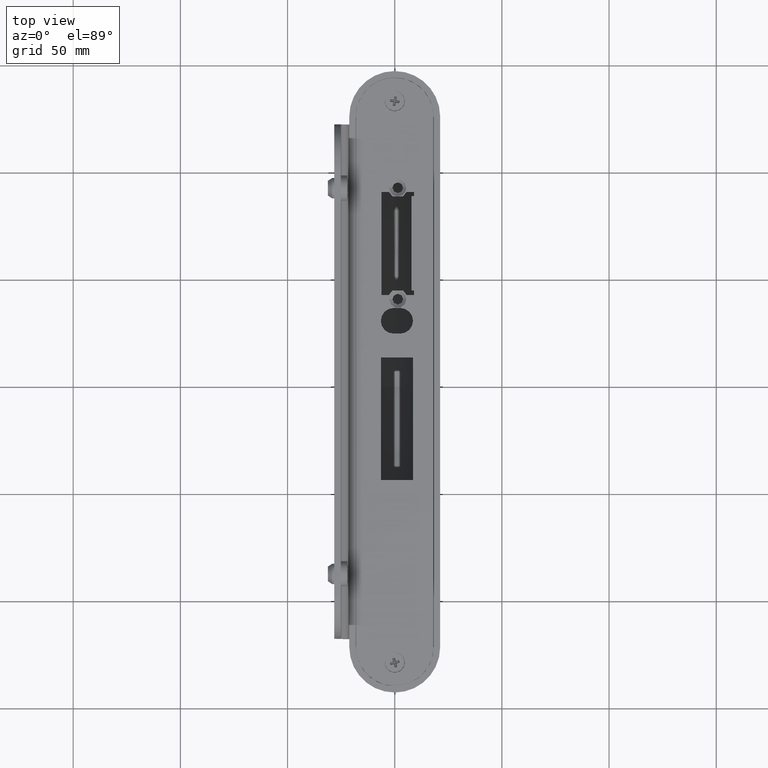
[diagram: clean part render]
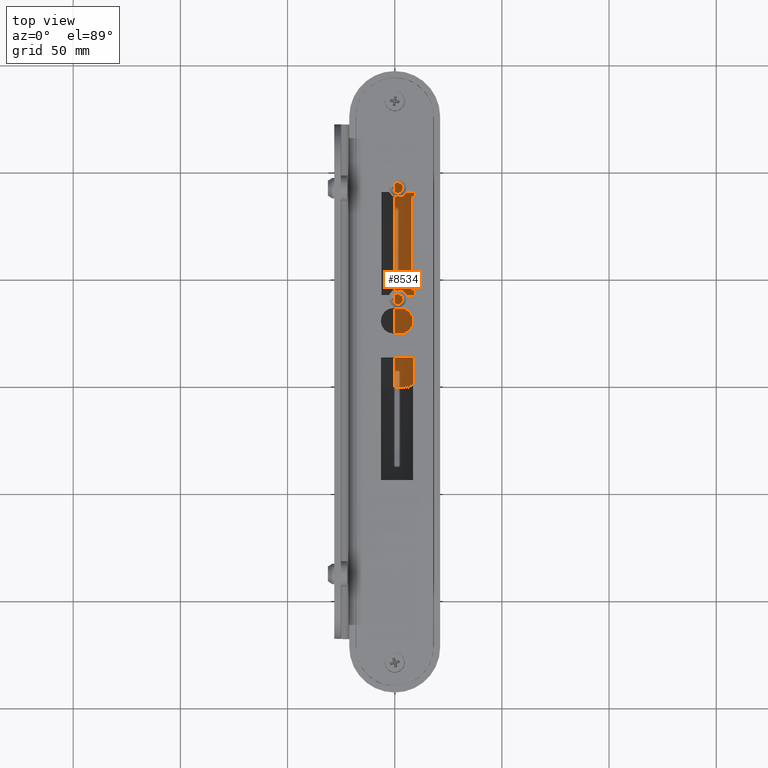
[diagram: same view with one face highlighted and labeled with its STEP entity id]
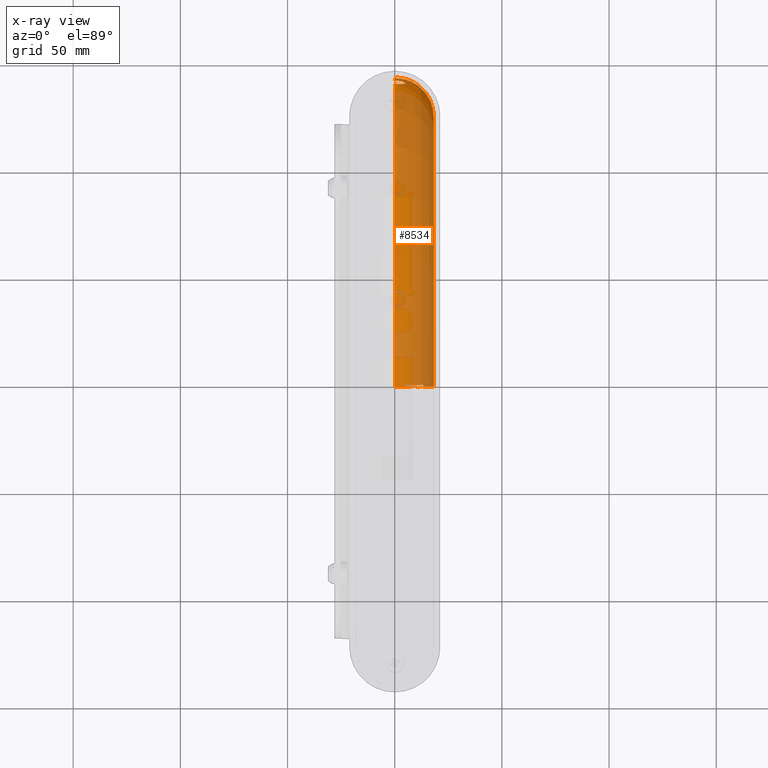
[diagram: x-ray of the same camera — body ghosted, the highlighted face saturated]
A machine part, top view. The second image highlights one B-rep face of the part: STEP entity #8534.
The next image is the same camera in x-ray: the body ghosted, the highlighted face saturated — about 72% of this face is hidden behind the body in this view.
In plain terms, the highlighted toroidal blend (fillet) surface has major radius 123.8 mm and minor (blend) radius 18.2 mm.
Its self-contained STEP definition (entity closure, byte-faithful):
#24 = CARTESIAN_POINT ( 'NONE',  ( 6.472082099022889778, 0.4579326923076924016, -140.8103042591335168 ) ) ;
#28 = CARTESIAN_POINT ( 'NONE',  ( 5.003932379584533408, 139.5349432251256871, -22.25757846229711845 ) ) ;
#30 = VERTEX_POINT ( 'NONE', #14428 ) ;
#83 = CARTESIAN_POINT ( 'NONE',  ( 2.533814540970199314, 139.3607762474830736, -26.32298914488008634 ) ) ;
#88 = VERTEX_POINT ( 'NONE', #10711 ) ;
#135 = CARTESIAN_POINT ( 'NONE',  ( 4.720638682037687772, 139.9058719054347932, -20.34418253246573371 ) ) ;
#141 = CARTESIAN_POINT ( 'NONE',  ( 10.94863503271410643, 0.9021221397975144329, -138.3355877587160592 ) ) ;
#142 = ORIENTED_EDGE ( 'NONE', *, *, #1695, .F. ) ;
#173 = CARTESIAN_POINT ( 'NONE',  ( 12.03541120093202110, 0.9753025164621075271, -137.4491171988378824 ) ) ;
#177 = CARTESIAN_POINT ( 'NONE',  ( 6.458936798878204044, 0.3052884615384615641, -140.8150190603577414 ) ) ;
#220 = DIRECTION ( 'NONE',  ( 1.000000000000000000, 0.000000000000000000, 0.000000000000000000 ) ) ;
#221 = VERTEX_POINT ( 'NONE', #16057 ) ;
#246 = CARTESIAN_POINT ( 'NONE',  ( 4.936204594017093328, 0.6444978632478631786, -141.3163465291233365 ) ) ;
#247 = DIRECTION ( 'NONE',  ( 0.000000000000000000, 0.000000000000000000, 1.000000000000000000 ) ) ;
#311 = DIRECTION ( 'NONE',  ( 0.000000000000000000, 4.805045250577678517E-13, -1.000000000000000000 ) ) ;
#340 = CARTESIAN_POINT ( 'NONE',  ( 6.174130099007046901, 0.1031417720275991518, -140.9208796697563741 ) ) ;
#348 = ORIENTED_EDGE ( 'NONE', *, *, #13849, .F. ) ;
#361 = CARTESIAN_POINT ( 'NONE',  ( 10.19132207775789212, 0.6655420763772524895, -138.8774440361265192 ) ) ;
#407 = CARTESIAN_POINT ( 'NONE',  ( 6.120787426549145316, 0.9837072649572650151, -140.9364608580901290 ) ) ;
#411 = CARTESIAN_POINT ( 'NONE',  ( 9.922582799145295951, 0.000000000000000000, -139.0572065134514332 ) ) ;
#418 = CARTESIAN_POINT ( 'NONE',  ( 10.54889339997802189, 0.9751306144745528481, -138.6278173276461700 ) ) ;
#466 = CARTESIAN_POINT ( 'NONE',  ( 5.879529272540858109, 0.9256138225629098049, -141.0211428077660969 ) ) ;
#470 = CIRCLE ( 'NONE', #12989, 140.0432408421726791 ) ;
#514 = CARTESIAN_POINT ( 'NONE',  ( 11.54802301843306722, 0.9667467948717949344, -137.8637287617848131 ) ) ;
#550 = CARTESIAN_POINT ( 'NONE',  ( 5.461979166666665719, 0.7801816239316239354, -141.1589149174654096 ) ) ;
#568 = CARTESIAN_POINT ( 'NONE',  ( 6.572427900472122886, 0.6941470894413480641, -140.7701458166028772 ) ) ;
#595 = CARTESIAN_POINT ( 'NONE',  ( 6.582058177937817251E-27, 141.8511543837412603, -6.499999999999959144 ) ) ;
#604 = CARTESIAN_POINT ( 'NONE',  ( 7.884052486854930208, 0.9504786450149688148, -140.2005333574682879 ) ) ;
#606 = ORIENTED_EDGE ( 'NONE', *, *, #11576, .F. ) ;
#621 = CARTESIAN_POINT ( 'NONE',  ( 10.16164851553942050, 0.4260528602715936697, -138.8983960162809979 ) ) ;
#636 = EDGE_CURVE ( 'NONE', #7345, #8224, #2776, .T. ) ;
#659 = CARTESIAN_POINT ( 'NONE',  ( 8.066425412972787257, 0.8110376654030548860, -140.1124814873736284 ) ) ;
#686 = CIRCLE ( 'NONE', #6078, 18.20000000000000639 ) ;
#706 = CARTESIAN_POINT ( 'NONE',  ( 14.39450679784908438, 134.7963408818191340, -6.499999999999958256 ) ) ;
#752 = CARTESIAN_POINT ( 'NONE',  ( 5.879058064300685338, 0.03452264121124389018, -141.0243623774410082 ) ) ;
#793 = CARTESIAN_POINT ( 'NONE',  ( 6.855603123326039494, 1.356837606837607124, -140.6529088804663843 ) ) ;
#798 = CARTESIAN_POINT ( 'NONE',  ( -1.307563081421312513E-22, 139.4094688319268869, -27.00000000000000000 ) ) ;
#881 = CARTESIAN_POINT ( 'NONE',  ( 12.68713942307692299, 0.9667467948717949344, -136.8455887823503758 ) ) ;
#916 = CARTESIAN_POINT ( 'NONE',  ( 9.063014473112387392, 0.9594617791510656746, -139.5797032889273055 ) ) ;
#918 = CARTESIAN_POINT ( 'NONE',  ( 13.63927612898123165, 135.7092780455429022, -6.499999999999959144 ) ) ;
#932 = AXIS2_PLACEMENT_3D ( 'NONE', #14275, #6746, #10558 ) ;
#965 = CARTESIAN_POINT ( 'NONE',  ( 12.00791117938759456, 137.4840898583966577, -3.499999999999957812 ) ) ;
#971 = CARTESIAN_POINT ( 'NONE',  ( 5.678515709090334873, 0.7071725335857783623, -141.0897059003680454 ) ) ;
#993 = EDGE_CURVE ( 'NONE', #2708, #8978, #11682, .T. ) ;
#1026 = AXIS2_PLACEMENT_3D ( 'NONE', #11662, #14276, #6906 ) ;
#1073 = CARTESIAN_POINT ( 'NONE',  ( 18.16738602334176278, 124.9933252492651405, -3.499999999999958700 ) ) ;
#1126 = ORIENTED_EDGE ( 'NONE', *, *, #2205, .F. ) ;
#1148 = ORIENTED_EDGE ( 'NONE', *, *, #4206, .F. ) ;
#1159 = ORIENTED_EDGE ( 'NONE', *, *, #7456, .F. ) ;
#1160 = EDGE_CURVE ( 'NONE', #2872, #7789, #4257, .T. ) ;
#1162 = DIRECTION ( 'NONE',  ( 0.000000000000000000, 0.000000000000000000, 1.000000000000000000 ) ) ;
#1203 = ORIENTED_EDGE ( 'NONE', *, *, #10221, .T. ) ;
#1211 = CARTESIAN_POINT ( 'NONE',  ( 4.006151929841855974, 139.3279630875099144, -25.00980230747089550 ) ) ;
#1245 = ORIENTED_EDGE ( 'NONE', *, *, #13916, .F. ) ;
#1257 = EDGE_CURVE ( 'NONE', #8797, #1440, #10531, .T. ) ;
#1318 = CARTESIAN_POINT ( 'NONE',  ( 3.963448078010814335, 140.2924155857207609, -18.93480573443596171 ) ) ;
#1335 = AXIS2_PLACEMENT_3D ( 'NONE', #3415, #13238, #10840 ) ;
#1354 = AXIS2_PLACEMENT_3D ( 'NONE', #5130, #15063, #6228 ) ;
#1357 = DIRECTION ( 'NONE',  ( 1.000000000000000000, 0.000000000000000000, 0.000000000000000000 ) ) ;
#1360 = CARTESIAN_POINT ( 'NONE',  ( 12.17408710674489392, 0.9031910694131044526, -137.3260425632851991 ) ) ;
#1375 = AXIS2_PLACEMENT_3D ( 'NONE', #11354, #11191, #9979 ) ;
#1377 = CARTESIAN_POINT ( 'NONE',  ( 10.66778345352564017, 0.9837072649572650151, -138.5423001721350431 ) ) ;
#1381 = VERTEX_POINT ( 'NONE', #9786 ) ;
#1383 = ORIENTED_EDGE ( 'NONE', *, *, #9482, .F. ) ;
#1395 = DIRECTION ( 'NONE',  ( 1.000000000000000000, 0.000000000000000000, 0.000000000000000000 ) ) ;
#1415 = CARTESIAN_POINT ( 'NONE',  ( 11.15792668521990194, 0.9667467948717949344, -138.1751193177653079 ) ) ;
#1421 = CARTESIAN_POINT ( 'NONE',  ( 2.512656769197953999, 140.7235000292169786, -17.66502091056700863 ) ) ;
#1439 = EDGE_CURVE ( 'NONE', #4980, #13063, #15559, .T. ) ;
#1440 = VERTEX_POINT ( 'NONE', #1623 ) ;
#1461 = CARTESIAN_POINT ( 'NONE',  ( 6.303759273137351293, 0.9536374381988746984, -140.8702592566583576 ) ) ;
#1500 = CARTESIAN_POINT ( 'NONE',  ( 10.43347408449763414, 0.9329756536895706942, -138.7095299987682324 ) ) ;
#1533 = EDGE_CURVE ( 'NONE', #7789, #12140, #5200, .T. ) ;
#1619 = ORIENTED_EDGE ( 'NONE', *, *, #5055, .F. ) ;
#1623 = CARTESIAN_POINT ( 'NONE',  ( 6.835777243589744145, 1.356837606837606902, -140.6609439597298490 ) ) ;
#1673 = B_SPLINE_CURVE_WITH_KNOTS ( 'NONE', 3,
 ( #5968, #13497, #16010, #8465, #2188, #8519, #14631, #7169, #2128, #12132, #8357, #10883 ),
 .UNSPECIFIED., .F., .F.,
 ( 4, 2, 2, 2, 2, 4 ),
 ( 1.063181719063449481E-17, 0.0002060296316721001403, 0.0004120592633441896553, 0.0006180888950162792246, 0.0007211037108523162030, 0.0008241185266883531814 ),
 .UNSPECIFIED. ) ;
#1678 = VERTEX_POINT ( 'NONE', #12273 ) ;
#1684 = CARTESIAN_POINT ( 'NONE',  ( 5.374565879620833542, 1.187232905982906095, -141.1835803634327817 ) ) ;
#1692 = B_SPLINE_CURVE_WITH_KNOTS ( 'NONE', 3,
 ( #9360, #1885, #3206, #10629, #13195, #15704, #8214, #752, #1991, #6810 ),
 .UNSPECIFIED., .F., .F.,
 ( 4, 2, 2, 2, 4 ),
 ( 0.000000000000000000, 0.0001611298060965931571, 0.0003222596121931863141, 0.0004833894182897794712, 0.0006445192243863726283 ),
 .UNSPECIFIED. ) ;
#1695 = EDGE_CURVE ( 'NONE', #1911, #2866, #3267, .T. ) ;
#1696 = CARTESIAN_POINT ( 'NONE',  ( 4.936204594017093328, 0.000000000000000000, 1.387778780781445676E-14 ) ) ;
#1752 = CARTESIAN_POINT ( 'NONE',  ( 6.607157967613021654, 0.5788934912808982869, -140.7571765649725819 ) ) ;
#1784 = CARTESIAN_POINT ( 'NONE',  ( 13.02181952811853272, 0.9826363741625948611, -136.5115914406374316 ) ) ;
#1787 = CARTESIAN_POINT ( 'NONE',  ( 7.191947115384615508, 0.4860234708867521292, -140.5178883928530524 ) ) ;
#1791 = CARTESIAN_POINT ( 'NONE',  ( 4.936204594017093328, 0.7801816239316239354, -141.3156625801565838 ) ) ;
#1828 = DIRECTION ( 'NONE',  ( 0.000000000000000000, 4.263256414560601115E-14, -1.000000000000000000 ) ) ;
#1846 = CARTESIAN_POINT ( 'NONE',  ( 12.56841613247863165, 0.9667467948717949344, -136.9599811238938400 ) ) ;
#1885 = CARTESIAN_POINT ( 'NONE',  ( 5.633128493810562354, 0.4264381534096114978, -141.1056616295059882 ) ) ;
#1893 = CARTESIAN_POINT ( 'NONE',  ( 12.98859826368831882, 0.9805793369133570803, -136.5455391159418639 ) ) ;
#1901 = CARTESIAN_POINT ( 'NONE',  ( 7.952178410344005854, 0.9151436432842464663, -140.1678502460920299 ) ) ;
#1911 = VERTEX_POINT ( 'NONE', #10072 ) ;
#1914 = CARTESIAN_POINT ( 'NONE',  ( 6.544909773181348811, 0.7458932524373534934, -140.7805391286617294 ) ) ;
#1926 = CARTESIAN_POINT ( 'NONE',  ( 13.10314961979063142, 0.9819307512689474660, -136.4278657930933605 ) ) ;
#1950 = CARTESIAN_POINT ( 'NONE',  ( 7.561526631424056788, -8.250630301848919240E-15, -140.3548577463614606 ) ) ;
#1952 = B_SPLINE_CURVE_WITH_KNOTS ( 'NONE', 3,
 ( #3976, #12715, #5133, #3869, #13969, #13868, #14022, #8881, #12768, #6545 ),
 .UNSPECIFIED., .F., .F.,
 ( 4, 2, 2, 2, 4 ),
 ( 5.854691731421723944E-18, 0.0001718733459637309833, 0.0003437466919274561120, 0.0005156200378911812406, 0.0006874933838549063692 ),
 .UNSPECIFIED. ) ;
#1987 = ORIENTED_EDGE ( 'NONE', *, *, #12117, .F. ) ;
#1991 = CARTESIAN_POINT ( 'NONE',  ( 5.926751470044672843, 0.01296365037250716938, -141.0080331252374322 ) ) ;
#2003 = VERTEX_POINT ( 'NONE', #13128 ) ;
#2008 = ORIENTED_EDGE ( 'NONE', *, *, #7846, .T. ) ;
#2031 = CARTESIAN_POINT ( 'NONE',  ( 0.000000000000000000, 0.000000000000000000, -123.7999999999999829 ) ) ;
#2046 = CARTESIAN_POINT ( 'NONE',  ( 8.733759849091880412, 0.9346809061164530474, -139.7643866557900481 ) ) ;
#2052 = CARTESIAN_POINT ( 'NONE',  ( 18.19831922909295940, 124.3939191417852754, -3.499999999999960476 ) ) ;
#2088 = EDGE_CURVE ( 'NONE', #4659, #7669, #10677, .T. ) ;
#2104 = CARTESIAN_POINT ( 'NONE',  ( 18.19993278026321804, 123.7999999999999972, -3.499999999999958256 ) ) ;
#2113 = CARTESIAN_POINT ( 'NONE',  ( 11.80118766984931433, 0.9656148685041332502, -137.6520784588848585 ) ) ;
#2128 = CARTESIAN_POINT ( 'NONE',  ( 7.209058326917025639, 0.6232509888912447504, -140.5099812256974303 ) ) ;
#2142 = VERTEX_POINT ( 'NONE', #3302 ) ;
#2156 = AXIS2_PLACEMENT_3D ( 'NONE', #1696, #7985, #5637 ) ;
#2160 = VERTEX_POINT ( 'NONE', #7228 ) ;
#2162 = CARTESIAN_POINT ( 'NONE',  ( 18.19920115539372318, 123.7999999999999972, -6.499999999999959144 ) ) ;
#2164 = B_SPLINE_CURVE_WITH_KNOTS ( 'NONE', 3,
 ( #550, #13104, #8076, #8132, #1791 ),
 .UNSPECIFIED., .F., .F.,
 ( 4, 1, 4 ),
 ( 0.004168119418570438370, 0.004441643745277694920, 0.004715168071984951470 ),
 .UNSPECIFIED. ) ;
#2188 = CARTESIAN_POINT ( 'NONE',  ( 7.400052724640363344, 0.8929958666702314529, -140.4249150759779354 ) ) ;
#2205 = EDGE_CURVE ( 'NONE', #7611, #14504, #6961, .T. ) ;
#2245 = CARTESIAN_POINT ( 'NONE',  ( 6.324608385832836355, 0.01635984586092664381, -140.8658690735209120 ) ) ;
#2281 = VERTEX_POINT ( 'NONE', #14806 ) ;
#2283 = EDGE_CURVE ( 'NONE', #12140, #10651, #11649, .T. ) ;
#2302 = CARTESIAN_POINT ( 'NONE',  ( 4.817481303418801986, 0.000000000000000000, -141.3508368430456699 ) ) ;
#2317 = AXIS2_PLACEMENT_3D ( 'NONE', #6474, #5270, #247 ) ;
#2365 = ORIENTED_EDGE ( 'NONE', *, *, #6859, .F. ) ;
#2385 = CARTESIAN_POINT ( 'NONE',  ( 8.933045372596156497, 0.9837072649572652372, -139.6534172646448724 ) ) ;
#2391 = DIRECTION ( 'NONE',  ( 0.000000000000000000, 0.000000000000000000, 1.000000000000000000 ) ) ;
#2420 = EDGE_CURVE ( 'NONE', #12547, #4398, #15876, .T. ) ;
#2443 = DIRECTION ( 'NONE',  ( 0.000000000000000000, 0.000000000000000000, -1.000000000000000000 ) ) ;
#2445 = CIRCLE ( 'NONE', #9691, 18.20000000000000639 ) ;
#2450 = CIRCLE ( 'NONE', #1354, 18.20000000000000639 ) ;
#2458 = CARTESIAN_POINT ( 'NONE',  ( 8.599666132478633429, 0.7987321380876067911, -139.8378480284198986 ) ) ;
#2474 = CARTESIAN_POINT ( 'NONE',  ( 12.56841613247862810, 0.000000000000000000, -136.9633930246289424 ) ) ;
#2528 = CARTESIAN_POINT ( 'NONE',  ( 4.975879966697538848, 139.4897425525132348, -22.58980397188289402 ) ) ;
#2536 = CARTESIAN_POINT ( 'NONE',  ( 8.933045372596156497, 0.9837072649572652372, -139.6534172646448724 ) ) ;
#2540 = CARTESIAN_POINT ( 'NONE',  ( 0.000000000000000000, 0.000000000000000000, -123.7999999999999829 ) ) ;
#2541 = ORIENTED_EDGE ( 'NONE', *, *, #12837, .F. ) ;
#2575 = DIRECTION ( 'NONE',  ( 1.000000000000000000, 0.000000000000000000, 0.000000000000000000 ) ) ;
#2581 = CARTESIAN_POINT ( 'NONE',  ( 3.078923891872782370, 139.3435614268965708, -25.95331240137155859 ) ) ;
#2609 = DIRECTION ( 'NONE',  ( -1.000000000000000000, 0.000000000000000000, -0.000000000000000000 ) ) ;
#2624 = CARTESIAN_POINT ( 'NONE',  ( 0.000000000000000000, 0.000000000000000000, 1.387778780781445676E-14 ) ) ;
#2635 = CARTESIAN_POINT ( 'NONE',  ( 4.359136612984024772, 139.3408568060146706, -24.45464347615815015 ) ) ;
#2645 = ORIENTED_EDGE ( 'NONE', *, *, #12538, .T. ) ;
#2676 = CARTESIAN_POINT ( 'NONE',  ( 18.19999999999999929, 0.000000000000000000, 1.387778780781445676E-14 ) ) ;
#2708 = VERTEX_POINT ( 'NONE', #3775 ) ;
#2718 = VERTEX_POINT ( 'NONE', #16160 ) ;
#2724 = VERTEX_POINT ( 'NONE', #2458 ) ;
#2741 = CARTESIAN_POINT ( 'NONE',  ( 6.367936353444390463, 0.1915803170763177576, -140.8495077239713567 ) ) ;
#2776 = B_SPLINE_CURVE_WITH_KNOTS ( 'NONE', 3,
 ( #595, #6875, #5405, #13364, #6984, #4641, #14554, #9540, #9591, #14508, #3161, #15660, #4479, #13309, #918, #706, #9645, #5829, #5884, #5723, #10698, #14459, #12060, #7144, #3324, #9429, #6933 ),
 .UNSPECIFIED., .F., .F.,
 ( 4, 2, 2, 2, 2, 2, 2, 2, 1, 2, 2, 2, 2, 4 ),
 ( 0.1113378767629279870, 0.1131054448977851373, 0.1148730130326422877, 0.1184081493023566162, 0.1201757174372137527, 0.1219432855720708891, 0.1254784218417851760, 0.1272459899766423264, 0.1290135581114994490, 0.1307811262463565993, 0.1325486943812137497, 0.1360838306509280504, 0.1378513987857851453, 0.1396189669206422401 ),
 .UNSPECIFIED. ) ;
#2783 = EDGE_CURVE ( 'NONE', #5863, #12017, #1952, .T. ) ;
#2810 = ORIENTED_EDGE ( 'NONE', *, *, #12681, .F. ) ;
#2825 = CARTESIAN_POINT ( 'NONE',  ( 5.461979166666665719, 0.7801816239316239354, -141.1589149174654096 ) ) ;
#2866 = VERTEX_POINT ( 'NONE', #2825 ) ;
#2871 = CARTESIAN_POINT ( 'NONE',  ( 10.16360961042835243, 0.5598534927815237427, -138.8965957519376673 ) ) ;
#2872 = VERTEX_POINT ( 'NONE', #2987 ) ;
#2924 = ORIENTED_EDGE ( 'NONE', *, *, #7122, .F. ) ;
#2963 = CARTESIAN_POINT ( 'NONE',  ( 11.17765758547008659, 0.000000000000000000, 1.387778780781445676E-14 ) ) ;
#2973 = CARTESIAN_POINT ( 'NONE',  ( 5.792020603292381331, 0.8602096995054328010, -141.0511725808979406 ) ) ;
#2983 = CARTESIAN_POINT ( 'NONE',  ( 10.37918543296577312, 0.9009209264476608636, -138.7475351962090997 ) ) ;
#2987 = CARTESIAN_POINT ( 'NONE',  ( 13.41643963675213591, 0.4937086838942308931, -136.0970371589476144 ) ) ;
#3002 = AXIS2_PLACEMENT_3D ( 'NONE', #10379, #7872, #14053 ) ;
#3034 = B_SPLINE_CURVE_WITH_KNOTS ( 'NONE', 3,
 ( #7486, #13974, #5085, #15171, #5194, #8783, #3927, #6341 ),
 .UNSPECIFIED., .F., .F.,
 ( 4, 2, 2, 4 ),
 ( 0.000000000000000000, 0.0001240072674869270922, 0.0002480145349738542928, 0.0004960290699477125972 ),
 .UNSPECIFIED. ) ;
#3041 = CARTESIAN_POINT ( 'NONE',  ( 5.752517591648968143, 0.4095484853347690635, -141.0663922986513796 ) ) ;
#3042 = DIRECTION ( 'NONE',  ( 0.000000000000000000, -1.000000000000000000, 0.000000000000000000 ) ) ;
#3070 = B_SPLINE_CURVE_WITH_KNOTS ( 'NONE', 3,
 ( #14466, #9547, #7101, #2113, #10869, #13265, #3389, #14731, #7259, #10973 ),
 .UNSPECIFIED., .F., .F.,
 ( 4, 2, 2, 2, 4 ),
 ( 0.000000000000000000, 0.0001337205937948036515, 0.0002674411875896073030, 0.0004011617813844109816, 0.0005348823751792146060 ),
 .UNSPECIFIED. ) ;
#3089 = ORIENTED_EDGE ( 'NONE', *, *, #10685, .F. ) ;
#3108 = CARTESIAN_POINT ( 'NONE',  ( 7.193488418892585834, 0.4289356423615468539, -140.5174228170715764 ) ) ;
#3153 = ORIENTED_EDGE ( 'NONE', *, *, #7433, .T. ) ;
#3161 = CARTESIAN_POINT ( 'NONE',  ( 9.580308814892307012, 139.1339174622541748, -6.499999999999957367 ) ) ;
#3179 = B_SPLINE_CURVE_WITH_KNOTS ( 'NONE', 3,
 ( #14269, #514, #7928, #15468, #7984 ),
 .UNSPECIFIED., .F., .F.,
 ( 4, 1, 4 ),
 ( 0.007742778765618314914, 0.007819195021632542250, 0.007895611277646768719 ),
 .UNSPECIFIED. ) ;
#3206 = CARTESIAN_POINT ( 'NONE',  ( 5.639084453429591193, 0.3729862011036766400, -141.1038810436863855 ) ) ;
#3222 = VERTEX_POINT ( 'NONE', #5549 ) ;
#3228 = VERTEX_POINT ( 'NONE', #411 ) ;
#3267 = CIRCLE ( 'NONE', #5189, 141.1610709226965241 ) ;
#3286 = CARTESIAN_POINT ( 'NONE',  ( 6.261213066020201445, 4.026286623236828045E-12, -140.8890962587814215 ) ) ;
#3302 = CARTESIAN_POINT ( 'NONE',  ( 8.209575320512820795, 1.356837606837606902, -140.0366676884574133 ) ) ;
#3307 = EDGE_LOOP ( 'NONE', ( #12943, #2645, #9881, #15284, #5949, #1987, #10576, #15404, #142, #7811, #1148, #5867, #2541, #5524, #2924, #13501, #13940, #9121, #6987, #1159, #11130, #5294, #10308, #14396, #9667, #348, #4056, #11828, #15471, #10135, #1619, #3448, #4671, #3153, #6292, #13703, #9730, #15234, #12342, #2365, #3089, #5907, #1245, #12908, #10969, #2810, #14285, #16135, #6293, #4095, #3436, #606, #5420, #1383, #4997, #6361, #4603, #7235, #1126, #4775, #15622, #12554, #7285, #7745, #11591, #9953, #2008, #5345, #5631, #11947, #11269, #1203, #12430 ) ) ;
#3309 = CARTESIAN_POINT ( 'NONE',  ( 10.16002938034188041, 0.4860234708867521292, -138.8992756047779551 ) ) ;
#3318 = VERTEX_POINT ( 'NONE', #6414 ) ;
#3323 = CARTESIAN_POINT ( 'NONE',  ( 16.31424338238364058, 131.8429361956440289, -3.499999999999958700 ) ) ;
#3324 = CARTESIAN_POINT ( 'NONE',  ( 18.15896976801294471, 124.9894870745079629, -6.499999999999959144 ) ) ;
#3325 = CARTESIAN_POINT ( 'NONE',  ( 18.19969242430920531, 123.7999999999999972, -5.500000922118509550 ) ) ;
#3347 = CARTESIAN_POINT ( 'NONE',  ( 12.56841613247863165, 0.9667467948717949344, -136.9599811238938400 ) ) ;
#3361 = DIRECTION ( 'NONE',  ( 0.000000000000000000, -1.000000000000000000, 0.000000000000000000 ) ) ;
#3362 = VERTEX_POINT ( 'NONE', #10275 ) ;
#3389 = CARTESIAN_POINT ( 'NONE',  ( 11.67480979039732247, 0.9028679946800779454, -137.7591417785566819 ) ) ;
#3415 = CARTESIAN_POINT ( 'NONE',  ( 0.000000000000000000, 0.000000000000000000, 1.387778780781445676E-14 ) ) ;
#3433 = CARTESIAN_POINT ( 'NONE',  ( 13.27576212407806366, 136.2190097075568644, -3.499999999999959144 ) ) ;
#3436 = ORIENTED_EDGE ( 'NONE', *, *, #10363, .T. ) ;
#3448 = ORIENTED_EDGE ( 'NONE', *, *, #9284, .F. ) ;
#3464 = DIRECTION ( 'NONE',  ( 0.000000000000000000, 0.000000000000000000, -1.000000000000000000 ) ) ;
#3483 = EDGE_CURVE ( 'NONE', #30, #4120, #4481, .T. ) ;
#3570 = CARTESIAN_POINT ( 'NONE',  ( 0.000000000000000000, 0.000000000000000000, -123.7999999999999829 ) ) ;
#3597 = CIRCLE ( 'NONE', #10217, 123.7999999999999972 ) ;
#3617 = CARTESIAN_POINT ( 'NONE',  ( 12.29685466981322328, 0.5596783648744539930, -137.2163021242914738 ) ) ;
#3652 = B_SPLINE_CURVE_WITH_KNOTS ( 'NONE', 3,
 ( #9703, #10910, #971, #10808, #15934, #13419 ),
 .UNSPECIFIED., .F., .F.,
 ( 4, 2, 4 ),
 ( 0.000000000000000000, 0.0001758678662300823081, 0.0003517357324601646162 ),
 .UNSPECIFIED. ) ;
#3683 = DIRECTION ( 'NONE',  ( 0.000000000000000000, -1.000000000000000000, 0.000000000000000000 ) ) ;
#3754 = CARTESIAN_POINT ( 'NONE',  ( 6.954500534188034599, 0.000000000000000000, 1.387778780781445676E-14 ) ) ;
#3775 = CARTESIAN_POINT ( 'NONE',  ( 11.05893429487179525, 0.9667467948717949344, -138.2513760117240054 ) ) ;
#3793 = CARTESIAN_POINT ( 'NONE',  ( 3.798014972572984593, 139.3282061168102075, -25.26887316326312671 ) ) ;
#3795 = CARTESIAN_POINT ( 'NONE',  ( 12.68713942307692299, 0.000000000000000000, 1.387778780781445676E-14 ) ) ;
#3832 = CARTESIAN_POINT ( 'NONE',  ( 5.750307158119657203, 0.4579326923076923461, -141.0669713319590244 ) ) ;
#3842 = CARTESIAN_POINT ( 'NONE',  ( 6.954500534188034599, 1.356837606837606902, -140.6123396380008046 ) ) ;
#3861 = B_SPLINE_CURVE_WITH_KNOTS ( 'NONE', 3,
 ( #1787, #3108, #15445, #11949, #15505, #7963, #13100, #1950 ),
 .UNSPECIFIED., .F., .F.,
 ( 4, 2, 2, 4 ),
 ( 0.000000000000000000, 0.0001696922545316265573, 0.0003393845090632531146, 0.0006787690181265077470 ),
 .UNSPECIFIED. ) ;
#3869 = CARTESIAN_POINT ( 'NONE',  ( 9.902094330721144644, 0.7516188027017187689, -139.0684959512446710 ) ) ;
#3897 = CARTESIAN_POINT ( 'NONE',  ( 10.70449612232436643, 0.9826960803081350448, -138.5157470519059473 ) ) ;
#3927 = CARTESIAN_POINT ( 'NONE',  ( 9.279664559795637757, 0.8204634333266129786, -139.4542280271997186 ) ) ;
#3942 = CARTESIAN_POINT ( 'NONE',  ( 2.227171114431083510, 140.7808888530149432, -17.51150658607510380 ) ) ;
#3959 = EDGE_CURVE ( 'NONE', #10510, #14046, #2445, .T. ) ;
#3967 = B_SPLINE_CURVE_WITH_KNOTS ( 'NONE', 3,
 ( #15555, #14411, #10696, #12008, #4529, #4476, #15763, #4638, #10904, #8548, #12058, #9752, #965, #3433, #10803, #12162, #9696, #15928, #3323, #10958, #13306, #4590, #14553, #8332, #1073, #2052, #15872 ),
 .UNSPECIFIED., .F., .F.,
 ( 4, 2, 2, 2, 2, 2, 2, 2, 1, 2, 2, 2, 2, 4 ),
 ( 0.1112639883641525773, 0.1130383281101797061, 0.1148126678562068348, 0.1183613473482611061, 0.1201356870942882210, 0.1219100268403153497, 0.1254587063323695795, 0.1272330460783967221, 0.1290073858244238925, 0.1307817255704510351, 0.1325560653164781777, 0.1361047448085324629, 0.1378790845545596055, 0.1396534243005868037 ),
 .UNSPECIFIED. ) ;
#3976 = CARTESIAN_POINT ( 'NONE',  ( 9.922582799145299504, 0.5236545138888889506, -139.0562205342672542 ) ) ;
#3991 = CARTESIAN_POINT ( 'NONE',  ( 6.184703779040109595, 0.4579326923076923461, -140.9182489187065812 ) ) ;
#4013 = CARTESIAN_POINT ( 'NONE',  ( 8.733759849091880412, 0.9346809061164530474, -139.7643866557900481 ) ) ;
#4049 = CARTESIAN_POINT ( 'NONE',  ( 5.024048620743439386, 1.187232905982905651, -141.2880753063771806 ) ) ;
#4056 = ORIENTED_EDGE ( 'NONE', *, *, #2088, .T. ) ;
#4082 = CARTESIAN_POINT ( 'NONE',  ( 10.66778345352564017, 0.9837072649572650151, -138.5423001721350431 ) ) ;
#4094 = CARTESIAN_POINT ( 'NONE',  ( 18.19999999999999929, 0.000000000000000000, -123.7999999999999829 ) ) ;
#4095 = ORIENTED_EDGE ( 'NONE', *, *, #13262, .F. ) ;
#4105 = EDGE_CURVE ( 'NONE', #15441, #2872, #12976, .T. ) ;
#4110 = B_SPLINE_CURVE_WITH_KNOTS ( 'NONE', 3,
 ( #4082, #10461, #418, #1500, #2983, #7836, #5287, #361, #11675, #2871, #9092, #8983 ),
 .UNSPECIFIED., .F., .F.,
 ( 4, 2, 2, 2, 2, 4 ),
 ( 0.000000000000000000, 0.0002191546615211000470, 0.0004383093230422000939, 0.0006574639845633000867, 0.0007670413153238631477, 0.0008766186460844261003 ),
 .UNSPECIFIED. ) ;
#4117 = CARTESIAN_POINT ( 'NONE',  ( 6.835777243589744145, 0.000000000000000000, -140.6674879420742457 ) ) ;
#4120 = VERTEX_POINT ( 'NONE', #6631 ) ;
#4170 = VERTEX_POINT ( 'NONE', #246 ) ;
#4188 = AXIS2_PLACEMENT_3D ( 'NONE', #9852, #8651, #11122 ) ;
#4206 = EDGE_CURVE ( 'NONE', #6633, #4170, #7121, .T. ) ;
#4231 = CARTESIAN_POINT ( 'NONE',  ( 6.564409722222221077, 0.2499019264155982745, -140.7747163326048110 ) ) ;
#4257 = B_SPLINE_CURVE_WITH_KNOTS ( 'NONE', 3,
 ( #13187, #5545, #9349, #4292, #8055, #10618, #4351, #5597, #13134, #9406, #1926, #10679 ),
 .UNSPECIFIED., .F., .F.,
 ( 4, 2, 2, 2, 2, 4 ),
 ( 1.084202172485504434E-19, 0.0002060738240584687373, 0.0003091107360876942968, 0.0004121476481169199647, 0.0006182214721753709211, 0.0008242952962338220401 ),
 .UNSPECIFIED. ) ;
#4265 = CARTESIAN_POINT ( 'NONE',  ( 7.737654910600080704, 0.9825682231446623005, -140.2698841169987816 ) ) ;
#4290 = CARTESIAN_POINT ( 'NONE',  ( 8.500758488690459913, 0.9667467948717951565, -139.8894407451035704 ) ) ;
#4292 = CARTESIAN_POINT ( 'NONE',  ( 13.39399066860063314, 0.7313845703411789856, -136.1204214539819191 ) ) ;
#4302 = EDGE_CURVE ( 'NONE', #2003, #4980, #12330, .T. ) ;
#4346 = CARTESIAN_POINT ( 'NONE',  ( 8.480942841880342087, 0.9667467948717949344, -139.8998771303871536 ) ) ;
#4351 = CARTESIAN_POINT ( 'NONE',  ( 13.34141265166306667, 0.8452186563873766989, -136.1766944014431431 ) ) ;
#4368 = CARTESIAN_POINT ( 'NONE',  ( 12.68713942307692299, 0.7923719618055555802, -136.8467095520665850 ) ) ;
#4369 = CARTESIAN_POINT ( 'NONE',  ( 4.936204594017093328, 0.000000000000000000, -141.3178161939781887 ) ) ;
#4376 = AXIS2_PLACEMENT_3D ( 'NONE', #4645, #15822, #15880 ) ;
#4381 = CIRCLE ( 'NONE', #5881, 139.9032173342086196 ) ;
#4398 = VERTEX_POINT ( 'NONE', #12078 ) ;
#4459 = B_SPLINE_CURVE_WITH_KNOTS ( 'NONE', 3,
 ( #11432, #1415, #7754, #11639, #10316 ),
 .UNSPECIFIED., .F., .F.,
 ( 4, 1, 4 ),
 ( 0.007621505567711128748, 0.007696240441304053222, 0.007770975314896977695 ),
 .UNSPECIFIED. ) ;
#4465 = VERTEX_POINT ( 'NONE', #9508 ) ;
#4476 = CARTESIAN_POINT ( 'NONE',  ( 4.729234644390450271, 141.3717781523811823, -3.499999999999958700 ) ) ;
#4479 = CARTESIAN_POINT ( 'NONE',  ( 11.96896843488452333, 137.4084883608645100, -6.499999999999959144 ) ) ;
#4481 = B_SPLINE_CURVE_WITH_KNOTS ( 'NONE', 3,
 ( #6750, #11822, #11769, #4290, #4346 ),
 .UNSPECIFIED., .F., .F.,
 ( 4, 1, 4 ),
 ( 0.006538105326285533099, 0.006604658649575401511, 0.006671211972865269055 ),
 .UNSPECIFIED. ) ;
#4485 = CIRCLE ( 'NONE', #6072, 141.9999999999999716 ) ;
#4529 = CARTESIAN_POINT ( 'NONE',  ( 2.978009479569389217, 141.7213582537467005, -3.499999999999959588 ) ) ;
#4542 = CARTESIAN_POINT ( 'NONE',  ( 8.090852029914529453, 1.356837606837606902, -140.0961322780601677 ) ) ;
#4581 = CARTESIAN_POINT ( 'NONE',  ( 8.933045372596156497, 0.9837072649572652372, -139.6534172646448724 ) ) ;
#4590 = CARTESIAN_POINT ( 'NONE',  ( 17.60641137313674420, 128.5121795824136655, -3.499999999999959144 ) ) ;
#4603 = ORIENTED_EDGE ( 'NONE', *, *, #6388, .F. ) ;
#4624 = EDGE_CURVE ( 'NONE', #6522, #8018, #3597, .T. ) ;
#4638 = CARTESIAN_POINT ( 'NONE',  ( 7.506185072754092857, 140.3470049878408474, -3.499999999999959144 ) ) ;
#4640 = EDGE_CURVE ( 'NONE', #10200, #4465, #13700, .T. ) ;
#4641 = CARTESIAN_POINT ( 'NONE',  ( 4.711477451882769785, 141.2700877294723512, -6.499999999999962697 ) ) ;
#4645 = CARTESIAN_POINT ( 'NONE',  ( 4.817481303418801986, 0.000000000000000000, 1.387778780781445676E-14 ) ) ;
#4659 = VERTEX_POINT ( 'NONE', #8790 ) ;
#4671 = ORIENTED_EDGE ( 'NONE', *, *, #13683, .F. ) ;
#4682 = CARTESIAN_POINT ( 'NONE',  ( 8.691654245679590218, 0.9045849771955501994, -139.7875591969434765 ) ) ;
#4687 = EDGE_CURVE ( 'NONE', #13228, #2003, #9488, .T. ) ;
#4769 = DIRECTION ( 'NONE',  ( 0.000000000000000000, 0.000000000000000000, -1.000000000000000000 ) ) ;
#4775 = ORIENTED_EDGE ( 'NONE', *, *, #4803, .F. ) ;
#4803 = EDGE_CURVE ( 'NONE', #10651, #7611, #14606, .T. ) ;
#4839 = CARTESIAN_POINT ( 'NONE',  ( 8.611018277112210129, 0.8143402013400937722, -139.8316725022474145 ) ) ;
#4842 = CIRCLE ( 'NONE', #13061, 137.8508788697938598 ) ;
#4847 = EDGE_CURVE ( 'NONE', #2866, #3318, #2164, .T. ) ;
#4899 = EDGE_CURVE ( 'NONE', #3362, #7087, #3652, .T. ) ;
#4900 = EDGE_CURVE ( 'NONE', #1678, #14290, #13566, .T. ) ;
#4942 = DIRECTION ( 'NONE',  ( 0.000000000000000000, 0.000000000000000000, -1.000000000000000000 ) ) ;
#4980 = VERTEX_POINT ( 'NONE', #9595 ) ;
#4988 = CARTESIAN_POINT ( 'NONE',  ( 12.22840735209677376, 0.8360121837117434618, -137.2773170949678274 ) ) ;
#4997 = ORIENTED_EDGE ( 'NONE', *, *, #12367, .F. ) ;
#4998 = CARTESIAN_POINT ( 'NONE',  ( 3.758284640290565637, 140.3710710522983049, -18.68668814839674397 ) ) ;
#5035 = AXIS2_PLACEMENT_3D ( 'NONE', #7588, #10099, #12672 ) ;
#5048 = CARTESIAN_POINT ( 'NONE',  ( 8.480942841880342087, 0.000000000000000000, 1.387778780781445676E-14 ) ) ;
#5052 = CARTESIAN_POINT ( 'NONE',  ( 0.3337258815405467760, 140.9787217987168617, -16.99999999999999289 ) ) ;
#5055 = EDGE_CURVE ( 'NONE', #12272, #12547, #10624, .T. ) ;
#5076 = CARTESIAN_POINT ( 'NONE',  ( 8.090852029914529453, 0.000000000000000000, 1.387778780781445676E-14 ) ) ;
#5085 = CARTESIAN_POINT ( 'NONE',  ( 9.524746772216829527, 0.9789296047605487994, -139.3052942292874548 ) ) ;
#5121 = B_SPLINE_CURVE_WITH_KNOTS ( 'NONE', 3,
 ( #14220, #621, #15583, #5431, #10501, #6849, #7875, #8096 ),
 .UNSPECIFIED., .F., .F.,
 ( 4, 2, 2, 4 ),
 ( 0.000000000000000000, 0.0001782883196785564107, 0.0003565766393571128214, 0.0007131532787141920326 ),
 .UNSPECIFIED. ) ;
#5127 = DIRECTION ( 'NONE',  ( 0.000000000000000000, 0.000000000000000000, 1.000000000000000000 ) ) ;
#5130 = CARTESIAN_POINT ( 'NONE',  ( 0.000000000000000000, 0.000000000000000000, -123.7999999999999829 ) ) ;
#5133 = CARTESIAN_POINT ( 'NONE',  ( 9.920278630564880018, 0.6384309614117528175, -139.0572545917565321 ) ) ;
#5155 = CARTESIAN_POINT ( 'NONE',  ( 4.275946288593577727, 139.3365214312242415, -24.59679112383360078 ) ) ;
#5189 = AXIS2_PLACEMENT_3D ( 'NONE', #11082, #7309, #2391 ) ;
#5194 = CARTESIAN_POINT ( 'NONE',  ( 9.422992869063712362, 0.9419599861064233970, -139.3675759039062143 ) ) ;
#5200 = B_SPLINE_CURVE_WITH_KNOTS ( 'NONE', 3,
 ( #11842, #1784, #1893, #8389, #10641, #13096, #13369, #12991, #15501, #4368 ),
 .UNSPECIFIED., .F., .F.,
 ( 4, 2, 2, 2, 4 ),
 ( 3.108012608937941465E-17, 0.0001424989156439564252, 0.0002849978312878817337, 0.0004274967469318070694, 0.0005699956625757324593 ),
 .UNSPECIFIED. ) ;
#5203 = CARTESIAN_POINT ( 'NONE',  ( 6.615291132478631653, 0.4579326923076923461, -140.7544290161877143 ) ) ;
#5206 = CARTESIAN_POINT ( 'NONE',  ( 4.324894428198571283, 140.1337736516679513, -19.47025204068245685 ) ) ;
#5227 = B_SPLINE_CURVE_WITH_KNOTS ( 'NONE', 3,
 ( #12103, #8488, #5882, #14602, #7142, #8384, #916, #9643, #14657, #2385 ),
 .UNSPECIFIED., .F., .F.,
 ( 4, 2, 2, 2, 4 ),
 ( 0.000000000000000000, 0.0001133221165079320965, 0.0002266442330158641931, 0.0003399663495237962760, 0.0004532884660317284945 ),
 .UNSPECIFIED. ) ;
#5254 = CARTESIAN_POINT ( 'NONE',  ( 4.936204594017093328, 1.187232905982905873, -141.3128290420297901 ) ) ;
#5264 = CARTESIAN_POINT ( 'NONE',  ( 6.244975492944663920, 0.1187683887829706630, -140.8951197751313202 ) ) ;
#5270 = DIRECTION ( 'NONE',  ( 1.000000000000000000, 0.000000000000000000, 0.000000000000000000 ) ) ;
#5287 = CARTESIAN_POINT ( 'NONE',  ( 10.23750202070422155, 0.7609138480783714797, -138.8456847593554073 ) ) ;
#5294 = ORIENTED_EDGE ( 'NONE', *, *, #11853, .F. ) ;
#5295 = CARTESIAN_POINT ( 'NONE',  ( 6.403261234202367369, 0.9000905179949543200, -140.8335333640688418 ) ) ;
#5298 = VERTEX_POINT ( 'NONE', #3309 ) ;
#5336 = AXIS2_PLACEMENT_3D ( 'NONE', #7078, #10625, #1828 ) ;
#5345 = ORIENTED_EDGE ( 'NONE', *, *, #11243, .T. ) ;
#5384 = DIRECTION ( 'NONE',  ( 0.000000000000000000, -2.002842336423782399E-12, -1.000000000000000000 ) ) ;
#5405 = CARTESIAN_POINT ( 'NONE',  ( 1.188465649053588979, 141.8220404614978918, -6.499999999999959144 ) ) ;
#5420 = ORIENTED_EDGE ( 'NONE', *, *, #13284, .F. ) ;
#5431 = CARTESIAN_POINT ( 'NONE',  ( 10.20921740414448742, 0.2566028866519876606, -138.8667063038860761 ) ) ;
#5438 = B_SPLINE_CURVE_WITH_KNOTS ( 'NONE', 3,
 ( #9661, #3617, #9942, #7491, #6399, #12676, #4988, #1360, #11370, #173, #15073, #14909 ),
 .UNSPECIFIED., .F., .F.,
 ( 4, 2, 2, 2, 2, 4 ),
 ( 3.035766082959412030E-18, 0.0001972685276658011451, 0.0002959027914987072470, 0.0003945370553316133490, 0.0005918055829974255529, 0.0007890741106632378652 ),
 .UNSPECIFIED. ) ;
#5457 = DIRECTION ( 'NONE',  ( 0.000000000000000000, 1.000000000000000000, 2.871266442996095062E-16 ) ) ;
#5495 = CARTESIAN_POINT ( 'NONE',  ( 5.889107161880145824, 0.1673955593679027909, -141.0208124940774326 ) ) ;
#5506 = VERTEX_POINT ( 'NONE', #14872 ) ;
#5524 = ORIENTED_EDGE ( 'NONE', *, *, #4899, .F. ) ;
#5538 = CARTESIAN_POINT ( 'NONE',  ( 11.00775832705621937, 0.8513210895813632106, -138.2911954828865362 ) ) ;
#5545 = CARTESIAN_POINT ( 'NONE',  ( 13.41623691303162857, 0.5626657307667669583, -136.0970081718710674 ) ) ;
#5549 = CARTESIAN_POINT ( 'NONE',  ( 11.44902510683760433, 0.9667467948717949344, -137.9443975777421656 ) ) ;
#5597 = CARTESIAN_POINT ( 'NONE',  ( 13.28544191629390170, 0.9095950368874894387, -136.2364249000608538 ) ) ;
#5598 = VERTEX_POINT ( 'NONE', #6583 ) ;
#5631 = ORIENTED_EDGE ( 'NONE', *, *, #6769, .T. ) ;
#5632 = EDGE_CURVE ( 'NONE', #5298, #8074, #5121, .T. ) ;
#5637 = DIRECTION ( 'NONE',  ( 0.000000000000000000, 0.000000000000000000, 1.000000000000000000 ) ) ;
#5650 = B_SPLINE_CURVE_WITH_KNOTS ( 'NONE', 3,
 ( #10934, #5052, #12470, #8696, #6352, #3942, #1421, #7601, #7500, #4998, #1318, #5206, #12633, #12687, #135, #8747, #10158, #11221, #13728, #28, #2528, #11438, #8848, #15030, #10110, #2635, #5155, #1211, #3793, #12529, #2581, #83, #8799, #7553, #6461, #7648, #6303, #9951 ),
 .UNSPECIFIED., .F., .F.,
 ( 4, 2, 2, 2, 2, 2, 2, 2, 2, 2, 2, 2, 2, 2, 2, 2, 2, 2, 4 ),
 ( 1.970379635243170657E-07, 0.0009865507530117899587, 0.001972904468060055708, 0.002959258183108321241, 0.003945611898156587208, 0.004931965613204853174, 0.005918319328253118274, 0.006411496185777246920, 0.006904673043301375567, 0.007891026758349659748, 0.008877380473397943061, 0.009863734188446224641, 0.01035691104597037150, 0.01085008790349451489, 0.01183644161854279821, 0.01282279533359108152, 0.01380914904863936137, 0.01479550276368764294, 0.01578185647873592279 ),
 .UNSPECIFIED. ) ;
#5665 = CARTESIAN_POINT ( 'NONE',  ( 9.240718900240386446, 0.7502357939369659334, -139.4775586332171713 ) ) ;
#5684 = CARTESIAN_POINT ( 'NONE',  ( 5.141188191982009492, 1.322916666666666741, -141.2536390522154477 ) ) ;
#5687 = CARTESIAN_POINT ( 'NONE',  ( 6.615291132478631653, 0.4579326923076923461, -140.7544290161877143 ) ) ;
#5711 = DIRECTION ( 'NONE',  ( 0.000000000000000000, 0.000000000000000000, -1.000000000000000000 ) ) ;
#5723 = CARTESIAN_POINT ( 'NONE',  ( 16.53638498747188734, 131.2642697115828128, -6.499999999999960032 ) ) ;
#5829 = CARTESIAN_POINT ( 'NONE',  ( 15.71344586037242230, 132.8430838679689145, -6.499999999999960920 ) ) ;
#5838 = FACE_OUTER_BOUND ( 'NONE', #3307, .T. ) ;
#5863 = VERTEX_POINT ( 'NONE', #9394 ) ;
#5866 = CARTESIAN_POINT ( 'NONE',  ( 6.895216178328598566, 1.356837606837606902, -140.6367730132892575 ) ) ;
#5867 = ORIENTED_EDGE ( 'NONE', *, *, #11505, .T. ) ;
#5877 = DIRECTION ( 'NONE',  ( 0.000000000000000000, 0.000000000000000000, 1.000000000000000000 ) ) ;
#5881 = AXIS2_PLACEMENT_3D ( 'NONE', #5048, #13619, #12580 ) ;
#5882 = CARTESIAN_POINT ( 'NONE',  ( 9.214138378347346503, 0.8196063408021639907, -139.4928232143084585 ) ) ;
#5884 = CARTESIAN_POINT ( 'NONE',  ( 16.27738412514823452, 131.8029169065901840, -6.499999999999960920 ) ) ;
#5896 = EDGE_CURVE ( 'NONE', #1440, #14046, #9444, .T. ) ;
#5905 = CARTESIAN_POINT ( 'NONE',  ( 4.817481303418801986, 1.322916666666666741, -141.3446460525561292 ) ) ;
#5907 = ORIENTED_EDGE ( 'NONE', *, *, #2783, .F. ) ;
#5949 = ORIENTED_EDGE ( 'NONE', *, *, #14990, .F. ) ;
#5958 = AXIS2_PLACEMENT_3D ( 'NONE', #15107, #1395, #5127 ) ;
#5968 = CARTESIAN_POINT ( 'NONE',  ( 7.699701188568376153, 0.9837072649572650151, -140.2875972315187596 ) ) ;
#5993 = CARTESIAN_POINT ( 'NONE',  ( 0.000000000000000000, 140.9787217987168333, -16.99999999999999645 ) ) ;
#6031 = VERTEX_POINT ( 'NONE', #9668 ) ;
#6065 = CARTESIAN_POINT ( 'NONE',  ( 8.110664275625422803, 1.356837606837607124, -140.0862992172630754 ) ) ;
#6072 = AXIS2_PLACEMENT_3D ( 'NONE', #2624, #10151, #7591 ) ;
#6078 = AXIS2_PLACEMENT_3D ( 'NONE', #9415, #3042, #5711 ) ;
#6080 = CARTESIAN_POINT ( 'NONE',  ( 6.530354143128070277, 0.1894940504126824132, -140.7879932848097440 ) ) ;
#6081 = DIRECTION ( 'NONE',  ( -1.000000000000000000, 0.000000000000000000, -0.000000000000000000 ) ) ;
#6228 = DIRECTION ( 'NONE',  ( 0.000000000000000000, 0.000000000000000000, -1.000000000000000000 ) ) ;
#6274 = B_SPLINE_CURVE_WITH_KNOTS ( 'NONE', 3,
 ( #10164, #6521, #6575, #2741, #7814, #5264, #340, #10327 ),
 .UNSPECIFIED., .F., .F.,
 ( 4, 2, 2, 4 ),
 ( 1.305552300251627901E-17, 0.0001122083546881673800, 0.0002244167093763217225, 0.0004488334187526282120 ),
 .UNSPECIFIED. ) ;
#6292 = ORIENTED_EDGE ( 'NONE', *, *, #14421, .F. ) ;
#6293 = ORIENTED_EDGE ( 'NONE', *, *, #14525, .F. ) ;
#6303 = CARTESIAN_POINT ( 'NONE',  ( 0.3335414937248057932, 139.4094688319269437, -27.00000000000012434 ) ) ;
#6305 = VERTEX_POINT ( 'NONE', #8623 ) ;
#6341 = CARTESIAN_POINT ( 'NONE',  ( 9.240718900240386446, 0.7502357939369659334, -139.4775586332171713 ) ) ;
#6347 = DIRECTION ( 'NONE',  ( 0.000000000000000000, 0.000000000000000000, -1.000000000000000000 ) ) ;
#6351 = VERTEX_POINT ( 'NONE', #14794 ) ;
#6352 = CARTESIAN_POINT ( 'NONE',  ( 1.623792599728061115, 140.8766537069596438, -17.25972976583911134 ) ) ;
#6361 = ORIENTED_EDGE ( 'NONE', *, *, #7711, .F. ) ;
#6388 = EDGE_CURVE ( 'NONE', #12086, #6826, #8266, .T. ) ;
#6399 = CARTESIAN_POINT ( 'NONE',  ( 12.26896634638791639, 0.7531118138413661622, -137.2408809659585245 ) ) ;
#6414 = CARTESIAN_POINT ( 'NONE',  ( 4.936204594017093328, 0.7801816239316239354, -141.3156625801565838 ) ) ;
#6458 = EDGE_CURVE ( 'NONE', #3228, #8074, #6715, .T. ) ;
#6461 = CARTESIAN_POINT ( 'NONE',  ( 1.316008191719442166, 139.3957741377158470, -26.83504808719739643 ) ) ;
#6474 = CARTESIAN_POINT ( 'NONE',  ( 9.922582799145299504, 0.000000000000000000, 1.387778780781445676E-14 ) ) ;
#6521 = CARTESIAN_POINT ( 'NONE',  ( 6.438423782736370171, 0.2747235205974487005, -140.8228719761310401 ) ) ;
#6522 = VERTEX_POINT ( 'NONE', #4094 ) ;
#6545 = CARTESIAN_POINT ( 'NONE',  ( 9.595298727964745922, 0.9837072649572652372, -139.2616556039507145 ) ) ;
#6548 = AXIS2_PLACEMENT_3D ( 'NONE', #7010, #15849, #3464 ) ;
#6575 = CARTESIAN_POINT ( 'NONE',  ( 6.416872604895210941, 0.2451459983128197184, -140.8310671444482409 ) ) ;
#6583 = CARTESIAN_POINT ( 'NONE',  ( 0.000000000000000000, 141.9568596440481940, -3.499999999999958256 ) ) ;
#6631 = CARTESIAN_POINT ( 'NONE',  ( 8.480942841880342087, 0.9667467948717949344, -139.8998771303871536 ) ) ;
#6633 = VERTEX_POINT ( 'NONE', #4369 ) ;
#6705 = CARTESIAN_POINT ( 'NONE',  ( 5.928192614225047841, 0.1415429891249565530, -141.0074446153746521 ) ) ;
#6715 = CIRCLE ( 'NONE', #5035, 18.20000000000000639 ) ;
#6717 = CARTESIAN_POINT ( 'NONE',  ( 6.485841577996556140, 0.8233082501013733179, -140.8027286819485369 ) ) ;
#6746 = DIRECTION ( 'NONE',  ( -1.000000000000000000, 0.000000000000000000, -0.000000000000000000 ) ) ;
#6750 = CARTESIAN_POINT ( 'NONE',  ( 8.599666132478633429, 0.9667467948717949344, -139.8367874161963869 ) ) ;
#6756 = VERTEX_POINT ( 'NONE', #5665 ) ;
#6769 = EDGE_CURVE ( 'NONE', #5598, #10470, #3967, .T. ) ;
#6810 = CARTESIAN_POINT ( 'NONE',  ( 5.976616108995672860, -2.978379600782933567E-16, -140.9906968993608416 ) ) ;
#6826 = VERTEX_POINT ( 'NONE', #13467 ) ;
#6828 = CARTESIAN_POINT ( 'NONE',  ( 12.68713942307692299, 0.9667467948717949344, -136.8455887823503758 ) ) ;
#6849 = CARTESIAN_POINT ( 'NONE',  ( 10.34444844709149081, 0.08268383094891092189, -138.7746340072988289 ) ) ;
#6859 = EDGE_CURVE ( 'NONE', #6756, #12919, #5227, .T. ) ;
#6863 = CARTESIAN_POINT ( 'NONE',  ( 6.013313943520896210, 0.1087108997137695571, -140.9779125060673834 ) ) ;
#6875 = CARTESIAN_POINT ( 'NONE',  ( 0.5947509012090386182, 141.8511543837412887, -6.499999999999962697 ) ) ;
#6901 = CARTESIAN_POINT ( 'NONE',  ( 6.613457261216102445, 0.5183792787399520430, -140.7549478718432283 ) ) ;
#6906 = DIRECTION ( 'NONE',  ( 0.000000000000000000, -4.263256414560601115E-14, -1.000000000000000000 ) ) ;
#6933 = CARTESIAN_POINT ( 'NONE',  ( 18.19920115539372318, 123.7999999999999972, -6.499999999999959144 ) ) ;
#6961 = CIRCLE ( 'NONE', #7167, 136.9633930246289424 ) ;
#6984 = CARTESIAN_POINT ( 'NONE',  ( 2.966756185375833077, 141.6172649724804273, -6.499999999999960032 ) ) ;
#6987 = ORIENTED_EDGE ( 'NONE', *, *, #16115, .F. ) ;
#7010 = CARTESIAN_POINT ( 'NONE',  ( 0.000000000000000000, 0.000000000000000000, -123.7999999999999829 ) ) ;
#7046 = CARTESIAN_POINT ( 'NONE',  ( 8.209575320512820795, 1.356837606837606902, -140.0366676884574133 ) ) ;
#7078 = CARTESIAN_POINT ( 'NONE',  ( 0.000000000000000000, 0.000000000000000000, 1.387778780781445676E-14 ) ) ;
#7087 = VERTEX_POINT ( 'NONE', #10337 ) ;
#7101 = CARTESIAN_POINT ( 'NONE',  ( 11.86814861024108581, 0.9804716147344801902, -137.5946586486857939 ) ) ;
#7114 = CIRCLE ( 'NONE', #2317, 139.0572065134514901 ) ;
#7121 = CIRCLE ( 'NONE', #2156, 141.3178161939782171 ) ;
#7122 = EDGE_CURVE ( 'NONE', #13063, #3362, #7622, .T. ) ;
#7137 = CARTESIAN_POINT ( 'NONE',  ( 8.209575320512820795, 0.000000000000000000, 1.387778780781445676E-14 ) ) ;
#7142 = CARTESIAN_POINT ( 'NONE',  ( 9.150233418542160990, 0.9061446233764581804, -139.5296464459576953 ) ) ;
#7144 = CARTESIAN_POINT ( 'NONE',  ( 18.03162175782973264, 126.1731594604711120, -6.499999999999958256 ) ) ;
#7167 = AXIS2_PLACEMENT_3D ( 'NONE', #13677, #6081, #7444 ) ;
#7169 = CARTESIAN_POINT ( 'NONE',  ( 7.219625881322761174, 0.6558567449840010388, -140.5052750748693313 ) ) ;
#7177 = CIRCLE ( 'NONE', #1026, 141.9999999999999716 ) ;
#7228 = CARTESIAN_POINT ( 'NONE',  ( 11.17765758547008659, 0.9667467948717949344, -138.1597640020304425 ) ) ;
#7235 = ORIENTED_EDGE ( 'NONE', *, *, #8574, .T. ) ;
#7259 = CARTESIAN_POINT ( 'NONE',  ( 11.59255312554635786, 0.8233192053813441769, -137.8280022009483616 ) ) ;
#7285 = ORIENTED_EDGE ( 'NONE', *, *, #1160, .F. ) ;
#7309 = DIRECTION ( 'NONE',  ( 1.000000000000000000, 0.000000000000000000, 0.000000000000000000 ) ) ;
#7345 = VERTEX_POINT ( 'NONE', #8414 ) ;
#7403 = CARTESIAN_POINT ( 'NONE',  ( 8.646669417641435373, 0.8593043469214750596, -139.8122062138589285 ) ) ;
#7433 = EDGE_CURVE ( 'NONE', #8942, #2281, #12507, .T. ) ;
#7444 = DIRECTION ( 'NONE',  ( 0.000000000000000000, 1.882938249764266250E-13, -1.000000000000000000 ) ) ;
#7456 = EDGE_CURVE ( 'NONE', #4465, #6351, #6274, .T. ) ;
#7457 = CARTESIAN_POINT ( 'NONE',  ( 8.622390668467041053, 0.8299581219680780553, -139.8254685940898128 ) ) ;
#7486 = CARTESIAN_POINT ( 'NONE',  ( 9.595298727964745922, 0.9837072649572652372, -139.2616556039507145 ) ) ;
#7491 = CARTESIAN_POINT ( 'NONE',  ( 12.27678453993524421, 0.7219792229730741528, -137.2339010021318870 ) ) ;
#7500 = CARTESIAN_POINT ( 'NONE',  ( 3.304454864579142281, 140.5211175852037400, -18.23392553029313490 ) ) ;
#7518 = AXIS2_PLACEMENT_3D ( 'NONE', #8641, #14923, #1162 ) ;
#7532 = EDGE_CURVE ( 'NONE', #5506, #1678, #14230, .T. ) ;
#7548 = CARTESIAN_POINT ( 'NONE',  ( 6.494128883107213923, 0.2868081962021222786, -140.8017003654666155 ) ) ;
#7553 = CARTESIAN_POINT ( 'NONE',  ( 1.630208078758603962, 139.3880959934961368, -26.73826736647757585 ) ) ;
#7588 = CARTESIAN_POINT ( 'NONE',  ( 0.000000000000000000, 0.000000000000000000, -123.7999999999999829 ) ) ;
#7591 = DIRECTION ( 'NONE',  ( 0.000000000000000000, -1.776356839400250859E-15, -1.000000000000000000 ) ) ;
#7601 = CARTESIAN_POINT ( 'NONE',  ( 3.052356154398645049, 140.5934738298576860, -18.02651165192066074 ) ) ;
#7610 = CARTESIAN_POINT ( 'NONE',  ( 11.56774839743589567, 0.7923719618055555802, -137.8486015592783929 ) ) ;
#7611 = VERTEX_POINT ( 'NONE', #3347 ) ;
#7622 = B_SPLINE_CURVE_WITH_KNOTS ( 'NONE', 3,
 ( #407, #10508, #14168, #11664, #12915, #466, #9295, #2973, #15479, #12968 ),
 .UNSPECIFIED., .F., .F.,
 ( 4, 2, 2, 2, 4 ),
 ( 8.845388854693243284E-18, 0.0001123640449910992355, 0.0002247280899821895534, 0.0003370921349732798849, 0.0004494561799643701622 ),
 .UNSPECIFIED. ) ;
#7648 = CARTESIAN_POINT ( 'NONE',  ( 0.6671371061463402530, 139.4064966029789900, -26.96633623990426898 ) ) ;
#7669 = VERTEX_POINT ( 'NONE', #15679 ) ;
#7711 = EDGE_CURVE ( 'NONE', #6826, #16171, #5438, .T. ) ;
#7725 = DIRECTION ( 'NONE',  ( -1.000000000000000000, 0.000000000000000000, -0.000000000000000000 ) ) ;
#7745 = ORIENTED_EDGE ( 'NONE', *, *, #4105, .F. ) ;
#7754 = CARTESIAN_POINT ( 'NONE',  ( 11.11840853154037134, 0.9667467948717949344, -138.2057432428075856 ) ) ;
#7759 = EDGE_CURVE ( 'NONE', #11262, #2718, #4485, .T. ) ;
#7765 = CARTESIAN_POINT ( 'NONE',  ( 5.750307158119657203, 0.4579326923076923461, -141.0669713319590244 ) ) ;
#7789 = VERTEX_POINT ( 'NONE', #11316 ) ;
#7811 = ORIENTED_EDGE ( 'NONE', *, *, #13682, .F. ) ;
#7814 = CARTESIAN_POINT ( 'NONE',  ( 6.338442284531405235, 0.1692995333502629041, -140.8605338570978063 ) ) ;
#7836 = CARTESIAN_POINT ( 'NONE',  ( 10.28118100064151541, 0.8140233353768773217, -138.8156379796693614 ) ) ;
#7846 = EDGE_CURVE ( 'NONE', #8018, #6305, #13870, .T. ) ;
#7872 = DIRECTION ( 'NONE',  ( 1.000000000000000000, 0.000000000000000000, 0.000000000000000000 ) ) ;
#7875 = CARTESIAN_POINT ( 'NONE',  ( 10.43385314195914937, 0.02506853076395437405, -138.7126956324762830 ) ) ;
#7899 = CIRCLE ( 'NONE', #8171, 138.1631462744756220 ) ;
#7928 = CARTESIAN_POINT ( 'NONE',  ( 11.50851038485211753, 0.9667467948717949344, -137.8961199720721993 ) ) ;
#7963 = CARTESIAN_POINT ( 'NONE',  ( 7.369017444464986966, 0.08809839609259063897, -140.4416140202682755 ) ) ;
#7984 = CARTESIAN_POINT ( 'NONE',  ( 11.44902510683760433, 0.9667467948717949344, -137.9443975777421656 ) ) ;
#7985 = DIRECTION ( 'NONE',  ( 1.000000000000000000, 0.000000000000000000, 0.000000000000000000 ) ) ;
#8018 = VERTEX_POINT ( 'NONE', #10417 ) ;
#8029 = CARTESIAN_POINT ( 'NONE',  ( 7.848699317102589390, 0.9632076167221621521, -140.2173969255276518 ) ) ;
#8050 = EDGE_CURVE ( 'NONE', #10315, #7669, #3861, .T. ) ;
#8055 = CARTESIAN_POINT ( 'NONE',  ( 13.38474629165295227, 0.7635175336954318492, -136.1302970961227743 ) ) ;
#8074 = VERTEX_POINT ( 'NONE', #12995 ) ;
#8076 = CARTESIAN_POINT ( 'NONE',  ( 5.200081252286946842, 0.7801816239316239354, -141.2398702833462778 ) ) ;
#8096 = CARTESIAN_POINT ( 'NONE',  ( 10.52960889638129061, -7.241072907840200024E-16, -138.6447747200571143 ) ) ;
#8132 = CARTESIAN_POINT ( 'NONE',  ( 5.024328988648353977, 0.7801816239316240464, -141.2908303370223564 ) ) ;
#8135 = CARTESIAN_POINT ( 'NONE',  ( 5.199522579895345942, 1.187232905982905873, -141.2372017763497070 ) ) ;
#8142 = EDGE_CURVE ( 'NONE', #10470, #8224, #11720, .T. ) ;
#8171 = AXIS2_PLACEMENT_3D ( 'NONE', #2963, #9125, #10330 ) ;
#8201 = DIRECTION ( 'NONE',  ( 0.000000000000000000, 0.000000000000000000, -1.000000000000000000 ) ) ;
#8214 = CARTESIAN_POINT ( 'NONE',  ( 5.794013331421933977, 0.09541750815291559495, -141.0531279670508980 ) ) ;
#8224 = VERTEX_POINT ( 'NONE', #13257 ) ;
#8230 = AXIS2_PLACEMENT_3D ( 'NONE', #11109, #14752, #12356 ) ;
#8240 = AXIS2_PLACEMENT_3D ( 'NONE', #3570, #3683, #4769 ) ;
#8266 = CIRCLE ( 'NONE', #14608, 137.2172499214991888 ) ;
#8305 = CIRCLE ( 'NONE', #4188, 18.20000000000000639 ) ;
#8332 = CARTESIAN_POINT ( 'NONE',  ( 18.04672692837909764, 126.1831182736658548, -3.499999999999958256 ) ) ;
#8357 = CARTESIAN_POINT ( 'NONE',  ( 7.192933457791752083, 0.5210254166117382901, -140.5173430275843884 ) ) ;
#8368 = CARTESIAN_POINT ( 'NONE',  ( 6.835777243589744145, 1.356837606837606902, -140.6609439597298490 ) ) ;
#8384 = CARTESIAN_POINT ( 'NONE',  ( 9.093382912207372826, 0.9452857435581157874, -139.5623151779684008 ) ) ;
#8389 = CARTESIAN_POINT ( 'NONE',  ( 12.92255318583217694, 0.9661744018105508092, -136.6125826553242462 ) ) ;
#8414 = CARTESIAN_POINT ( 'NONE',  ( 6.582058177937817251E-27, 141.8511543837412603, -6.499999999999959144 ) ) ;
#8415 = CARTESIAN_POINT ( 'NONE',  ( 11.56774839743589567, 0.9667467948717949344, -137.8474889354505706 ) ) ;
#8465 = CARTESIAN_POINT ( 'NONE',  ( 7.455277223204185510, 0.9280597595070713135, -140.4000406755037318 ) ) ;
#8488 = CARTESIAN_POINT ( 'NONE',  ( 9.228078758224187439, 0.7853339600422920563, -139.4848193873900755 ) ) ;
#8519 = CARTESIAN_POINT ( 'NONE',  ( 7.303937735457426861, 0.8035870301344922861, -140.4678991619948363 ) ) ;
#8534 = ADVANCED_FACE ( 'NONE', ( #5838 ), #8940, .F. ) ;
#8548 = CARTESIAN_POINT ( 'NONE',  ( 9.103653249001718351, 139.5270316966854978, -3.499999999999959144 ) ) ;
#8574 = EDGE_CURVE ( 'NONE', #12086, #14504, #12679, .T. ) ;
#8595 = CARTESIAN_POINT ( 'NONE',  ( 8.634589344967775304, 0.8447029138909579737, -139.8188050100268924 ) ) ;
#8598 = DIRECTION ( 'NONE',  ( 0.000000000000000000, 0.000000000000000000, 1.000000000000000000 ) ) ;
#8623 = CARTESIAN_POINT ( 'NONE',  ( 0.000000000000000000, 142.0000000000000000, 6.824346333257712749E-14 ) ) ;
#8629 = VERTEX_POINT ( 'NONE', #8415 ) ;
#8641 = CARTESIAN_POINT ( 'NONE',  ( 4.936204594017093328, 0.000000000000000000, 1.387778780781445676E-14 ) ) ;
#8651 = DIRECTION ( 'NONE',  ( 0.000000000000000000, -1.000000000000000000, 0.000000000000000000 ) ) ;
#8696 = CARTESIAN_POINT ( 'NONE',  ( 1.304588313009758638, 140.9148175295124759, -17.16205847061528544 ) ) ;
#8701 = EDGE_CURVE ( 'NONE', #3318, #221, #9735, .T. ) ;
#8747 = CARTESIAN_POINT ( 'NONE',  ( 4.817784548644493903, 139.8339917607704876, -20.65273866863756780 ) ) ;
#8760 = DIRECTION ( 'NONE',  ( 0.000000000000000000, -1.000000000000000000, 0.000000000000000000 ) ) ;
#8783 = CARTESIAN_POINT ( 'NONE',  ( 9.330715103167442237, 0.8820543061481259661, -139.4235688746537392 ) ) ;
#8790 = CARTESIAN_POINT ( 'NONE',  ( 6.954500534188034599, 0.000000000000000000, -140.6188858822449106 ) ) ;
#8797 = VERTEX_POINT ( 'NONE', #3842 ) ;
#8799 = CARTESIAN_POINT ( 'NONE',  ( 2.238416312506427364, 139.3706285550242114, -26.48310700610428015 ) ) ;
#8848 = CARTESIAN_POINT ( 'NONE',  ( 4.765654018790735691, 139.3906318095218637, -23.54852049193890196 ) ) ;
#8881 = CARTESIAN_POINT ( 'NONE',  ( 9.693045712039888073, 0.9744580967513850611, -139.2007376191788239 ) ) ;
#8931 = DIRECTION ( 'NONE',  ( 0.000000000000000000, 0.000000000000000000, 1.000000000000000000 ) ) ;
#8940 = TOROIDAL_SURFACE ( 'NONE', #1335, 123.7999999999999972, 18.19999999999999929 ) ;
#8942 = VERTEX_POINT ( 'NONE', #11595 ) ;
#8978 = VERTEX_POINT ( 'NONE', #10598 ) ;
#8983 = CARTESIAN_POINT ( 'NONE',  ( 10.16002938034188041, 0.4860234708867521292, -138.8992756047779551 ) ) ;
#8991 = CARTESIAN_POINT ( 'NONE',  ( 6.268503467016786068, 0.9650706064741945145, -140.8831618652110933 ) ) ;
#9048 = CARTESIAN_POINT ( 'NONE',  ( 6.195911986485331369, 0.9803837152182122150, -140.9095136910166843 ) ) ;
#9092 = CARTESIAN_POINT ( 'NONE',  ( 10.16107290282155340, 0.5230545433940513300, -138.8984438969265227 ) ) ;
#9121 = ORIENTED_EDGE ( 'NONE', *, *, #4687, .F. ) ;
#9122 = B_SPLINE_CURVE_WITH_KNOTS ( 'NONE', 3,
 ( #15418, #14334, #5538, #141, #10167, #15532, #14164, #10446, #3897, #1377 ),
 .UNSPECIFIED., .F., .F.,
 ( 4, 2, 2, 2, 4 ),
 ( 1.181531671618052047E-17, 0.0001343457353401113002, 0.0002686914706802107826, 0.0004030372060203103192, 0.0005373829413604096390 ),
 .UNSPECIFIED. ) ;
#9125 = DIRECTION ( 'NONE',  ( 1.000000000000000000, 0.000000000000000000, 0.000000000000000000 ) ) ;
#9183 = CARTESIAN_POINT ( 'NONE',  ( 8.864912354355759305, 0.9797548326213828540, -139.6916832439566747 ) ) ;
#9284 = EDGE_CURVE ( 'NONE', #2142, #12272, #10241, .T. ) ;
#9295 = CARTESIAN_POINT ( 'NONE',  ( 5.848845623922991344, 0.9062995592245376431, -141.0317034331881416 ) ) ;
#9300 = CARTESIAN_POINT ( 'NONE',  ( 6.103031934428418737, 0.1017628205128205121, -140.9461873730738262 ) ) ;
#9333 = B_SPLINE_CURVE_WITH_KNOTS ( 'NONE', 3,
 ( #2046, #12154, #4682, #12428, #14936, #7403, #8595, #7457, #4839, #13583 ),
 .UNSPECIFIED., .F., .F.,
 ( 4, 3, 3, 4 ),
 ( 2.004806794763915468E-17, 8.474491179122185737E-05, 0.0001447272718086880367, 0.0002052641448816139270 ),
 .UNSPECIFIED. ) ;
#9349 = CARTESIAN_POINT ( 'NONE',  ( 13.41347097217134632, 0.6321616001469234636, -136.0997334080859957 ) ) ;
#9360 = CARTESIAN_POINT ( 'NONE',  ( 5.631583867521366749, 0.4807233239850427498, -141.1059793094547103 ) ) ;
#9380 = CARTESIAN_POINT ( 'NONE',  ( 12.68713942307692299, 0.7923719618055555802, -136.8467095520665850 ) ) ;
#9394 = CARTESIAN_POINT ( 'NONE',  ( 9.922582799145299504, 0.5236545138888889506, -139.0562205342672542 ) ) ;
#9406 = CARTESIAN_POINT ( 'NONE',  ( 13.15071088962553958, 0.9760661631400407989, -136.3783669753145489 ) ) ;
#9415 = CARTESIAN_POINT ( 'NONE',  ( 0.000000000000000000, 0.000000000000000000, -123.7999999999999829 ) ) ;
#9429 = CARTESIAN_POINT ( 'NONE',  ( 18.19366278030492623, 124.3919096103141584, -6.499999999999957367 ) ) ;
#9444 = CIRCLE ( 'NONE', #8230, 140.6674879420742457 ) ;
#9482 = EDGE_CURVE ( 'NONE', #13214, #8629, #4842, .T. ) ;
#9488 = B_SPLINE_CURVE_WITH_KNOTS ( 'NONE', 3,
 ( #3832, #15078, #3991, #24, #5203 ),
 .UNSPECIFIED., .F., .F.,
 ( 4, 1, 4 ),
 ( 0.1082948051304256920, 0.1087523857275947414, 0.1092099663247637908 ),
 .UNSPECIFIED. ) ;
#9495 = CARTESIAN_POINT ( 'NONE',  ( 7.984016366439808721, 0.8930005474214657291, -140.1524777381841886 ) ) ;
#9508 = CARTESIAN_POINT ( 'NONE',  ( 6.458936798878204044, 0.3052884615384615641, -140.8150190603577414 ) ) ;
#9540 = CARTESIAN_POINT ( 'NONE',  ( 7.478924409883287439, 140.2523224988230766, -6.499999999999959144 ) ) ;
#9547 = CARTESIAN_POINT ( 'NONE',  ( 11.90188181240197096, 0.9826187137167093910, -137.5655575112032807 ) ) ;
#9574 = AXIS2_PLACEMENT_3D ( 'NONE', #2031, #3361, #8201 ) ;
#9591 = CARTESIAN_POINT ( 'NONE',  ( 8.018288507739340432, 139.9985851721632173, -6.499999999999960032 ) ) ;
#9595 = CARTESIAN_POINT ( 'NONE',  ( 6.510083216479700674, 0.7934319911858973562, -140.7936113913539202 ) ) ;
#9643 = CARTESIAN_POINT ( 'NONE',  ( 8.999504800020377004, 0.9790916992814637787, -139.6158672711022746 ) ) ;
#9645 = CARTESIAN_POINT ( 'NONE',  ( 15.10146039557636222, 133.8512943302619362, -6.499999999999960032 ) ) ;
#9661 = CARTESIAN_POINT ( 'NONE',  ( 12.29704861111110858, 0.4937086838942308931, -137.2163617348697358 ) ) ;
#9667 = ORIENTED_EDGE ( 'NONE', *, *, #1257, .F. ) ;
#9668 = CARTESIAN_POINT ( 'NONE',  ( 11.17765758547008303, 0.000000000000000000, -138.1631462744755936 ) ) ;
#9679 = B_SPLINE_CURVE_WITH_KNOTS ( 'NONE', 3,
 ( #9300, #12979, #6863, #6705, #5495, #10627, #14124, #11832, #3041, #14237 ),
 .UNSPECIFIED., .F., .F.,
 ( 4, 2, 2, 2, 4 ),
 ( 0.000000000000000000, 0.0001420881448914639922, 0.0002841762897829279845, 0.0004262644346743919496, 0.0005683525795658559690 ),
 .UNSPECIFIED. ) ;
#9691 = AXIS2_PLACEMENT_3D ( 'NONE', #2540, #8760, #2443 ) ;
#9696 = CARTESIAN_POINT ( 'NONE',  ( 15.14160504630126169, 133.9040982741194625, -3.499999999999958256 ) ) ;
#9703 = CARTESIAN_POINT ( 'NONE',  ( 5.742886952457263661, 0.8035022702991453381, -141.0678955303229998 ) ) ;
#9730 = ORIENTED_EDGE ( 'NONE', *, *, #11019, .F. ) ;
#9735 = CIRCLE ( 'NONE', #7518, 141.3178161939782171 ) ;
#9752 = CARTESIAN_POINT ( 'NONE',  ( 11.09181619267065955, 138.2338007793837278, -3.499999999999957812 ) ) ;
#9786 = CARTESIAN_POINT ( 'NONE',  ( 5.461979166666665719, 1.187232905982905873, -141.1560782328182597 ) ) ;
#9849 = VERTEX_POINT ( 'NONE', #5993 ) ;
#9852 = CARTESIAN_POINT ( 'NONE',  ( 0.000000000000000000, 0.000000000000000000, -123.7999999999999829 ) ) ;
#9881 = ORIENTED_EDGE ( 'NONE', *, *, #4900, .F. ) ;
#9899 = DIRECTION ( 'NONE',  ( 0.000000000000000000, -1.000000000000000000, 0.000000000000000000 ) ) ;
#9942 = CARTESIAN_POINT ( 'NONE',  ( 12.29446607874757191, 0.6259847511642505635, -137.2182129345080739 ) ) ;
#9951 = CARTESIAN_POINT ( 'NONE',  ( -1.307563081421312513E-22, 139.4094688319268869, -27.00000000000000000 ) ) ;
#9953 = ORIENTED_EDGE ( 'NONE', *, *, #4624, .T. ) ;
#9979 = DIRECTION ( 'NONE',  ( 0.000000000000000000, 0.000000000000000000, 1.000000000000000000 ) ) ;
#10041 = CARTESIAN_POINT ( 'NONE',  ( 8.090852029914529453, 0.7796516092414529364, -140.1005332999530992 ) ) ;
#10072 = CARTESIAN_POINT ( 'NONE',  ( 5.461979166666665719, 0.6444978632478631786, -141.1595996259086405 ) ) ;
#10099 = DIRECTION ( 'NONE',  ( 0.000000000000000000, -1.000000000000000000, 0.000000000000000000 ) ) ;
#10106 = CARTESIAN_POINT ( 'NONE',  ( 6.529286833816433600, 0.2683458552518034335, -140.7882660496500193 ) ) ;
#10110 = CARTESIAN_POINT ( 'NONE',  ( 4.511800894610884960, 139.3530956762349717, -24.16124947497785058 ) ) ;
#10135 = ORIENTED_EDGE ( 'NONE', *, *, #2420, .F. ) ;
#10151 = DIRECTION ( 'NONE',  ( -1.000000000000000000, -0.000000000000000000, -0.000000000000000000 ) ) ;
#10158 = CARTESIAN_POINT ( 'NONE',  ( 4.859276387849303269, 139.7989198858180089, -20.81102275348176178 ) ) ;
#10164 = CARTESIAN_POINT ( 'NONE',  ( 6.458936798878204044, 0.3052884615384615641, -140.8150190603577414 ) ) ;
#10167 = CARTESIAN_POINT ( 'NONE',  ( 10.91589360391045815, 0.9232728672195645858, -138.3600604251603272 ) ) ;
#10200 = VERTEX_POINT ( 'NONE', #4231 ) ;
#10202 = DIRECTION ( 'NONE',  ( -0.000000000000000000, -2.871266442996094569E-16, 1.000000000000000000 ) ) ;
#10217 = AXIS2_PLACEMENT_3D ( 'NONE', #2676, #2575, #6347 ) ;
#10221 = EDGE_CURVE ( 'NONE', #7345, #9849, #7177, .T. ) ;
#10241 = B_SPLINE_CURVE_WITH_KNOTS ( 'NONE', 3,
 ( #7046, #11309, #11205, #6065, #14904 ),
 .UNSPECIFIED., .F., .F.,
 ( 4, 1, 4 ),
 ( 0.006332437745950734130, 0.006398056535959169462, 0.006463675325967604794 ),
 .UNSPECIFIED. ) ;
#10249 = CARTESIAN_POINT ( 'NONE',  ( 5.976616108995672860, -2.978379600782933567E-16, -140.9906968993608416 ) ) ;
#10275 = CARTESIAN_POINT ( 'NONE',  ( 5.742886952457263661, 0.8035022702991453381, -141.0678955303229998 ) ) ;
#10308 = ORIENTED_EDGE ( 'NONE', *, *, #3959, .T. ) ;
#10315 = VERTEX_POINT ( 'NONE', #14860 ) ;
#10316 = CARTESIAN_POINT ( 'NONE',  ( 11.05893429487179525, 0.9667467948717949344, -138.2513760117240054 ) ) ;
#10327 = CARTESIAN_POINT ( 'NONE',  ( 6.103031934428418737, 0.1017628205128205121, -140.9461873730738262 ) ) ;
#10330 = DIRECTION ( 'NONE',  ( 0.000000000000000000, 0.000000000000000000, 1.000000000000000000 ) ) ;
#10337 = CARTESIAN_POINT ( 'NONE',  ( 5.631583867521366749, 0.4807233239850427498, -141.1059793094547103 ) ) ;
#10363 = EDGE_CURVE ( 'NONE', #6031, #13993, #10488, .T. ) ;
#10379 = CARTESIAN_POINT ( 'NONE',  ( 13.41643963675213591, 0.000000000000000000, 1.387778780781445676E-14 ) ) ;
#10411 = EDGE_CURVE ( 'NONE', #9849, #11262, #5650, .T. ) ;
#10413 = CARTESIAN_POINT ( 'NONE',  ( 6.158268847282738712, 0.9827396006389446104, -140.9230823836112734 ) ) ;
#10417 = CARTESIAN_POINT ( 'NONE',  ( 18.19999999999999929, 123.7999999999999972, 7.717964198773502454E-14 ) ) ;
#10426 = CARTESIAN_POINT ( 'NONE',  ( 5.461979166666665719, 1.187232905982905873, -141.1560782328182597 ) ) ;
#10446 = CARTESIAN_POINT ( 'NONE',  ( 10.74117622485410095, 0.9806800369963292185, -138.4890136083892571 ) ) ;
#10461 = CARTESIAN_POINT ( 'NONE',  ( 10.60814732351963841, 0.9819994484891354514, -138.5854569009723321 ) ) ;
#10470 = VERTEX_POINT ( 'NONE', #11593 ) ;
#10488 = CIRCLE ( 'NONE', #8240, 18.20000000000000639 ) ;
#10501 = CARTESIAN_POINT ( 'NONE',  ( 10.23888230182330439, 0.2074445382114343539, -138.8466817032386018 ) ) ;
#10508 = CARTESIAN_POINT ( 'NONE',  ( 6.085079754898538695, 0.9826157369379211470, -140.9492202704867623 ) ) ;
#10510 = VERTEX_POINT ( 'NONE', #3286 ) ;
#10531 = B_SPLINE_CURVE_WITH_KNOTS ( 'NONE', 3,
 ( #13341, #13401, #5866, #793, #8368 ),
 .UNSPECIFIED., .F., .F.,
 ( 4, 1, 4 ),
 ( 0.005598965010668335157, 0.005662447105856100935, 0.005725929201043867579 ),
 .UNSPECIFIED. ) ;
#10536 = CARTESIAN_POINT ( 'NONE',  ( 12.66743336096268813, 0.9667467948717949344, -136.8647488504368255 ) ) ;
#10552 = CARTESIAN_POINT ( 'NONE',  ( 6.510083216479700674, 0.7934319911858973562, -140.7936113913539202 ) ) ;
#10558 = DIRECTION ( 'NONE',  ( 0.000000000000000000, -1.083577672034153288E-13, -1.000000000000000000 ) ) ;
#10576 = ORIENTED_EDGE ( 'NONE', *, *, #8701, .F. ) ;
#10598 = CARTESIAN_POINT ( 'NONE',  ( 11.05893429487179525, 0.7878668369391025328, -138.2525111321589861 ) ) ;
#10618 = CARTESIAN_POINT ( 'NONE',  ( 13.35781407174359714, 0.8203481490939699139, -136.1591334289817894 ) ) ;
#10624 = CIRCLE ( 'NONE', #12738, 140.1027026418942967 ) ;
#10625 = DIRECTION ( 'NONE',  ( -1.000000000000000000, -0.000000000000000000, -0.000000000000000000 ) ) ;
#10627 = CARTESIAN_POINT ( 'NONE',  ( 5.822003886872419542, 0.2332492443334716059, -141.0435207372704554 ) ) ;
#10629 = CARTESIAN_POINT ( 'NONE',  ( 5.672511370299401001, 0.2701459898096467138, -141.0931866093293650 ) ) ;
#10641 = CARTESIAN_POINT ( 'NONE',  ( 12.88991956218299073, 0.9551830851750384710, -136.6454735539014678 ) ) ;
#10651 = VERTEX_POINT ( 'NONE', #881 ) ;
#10677 = CIRCLE ( 'NONE', #6548, 18.20000000000000639 ) ;
#10679 = CARTESIAN_POINT ( 'NONE',  ( 13.05496961805555500, 0.9837072649572650151, -136.4774551318970168 ) ) ;
#10685 = EDGE_CURVE ( 'NONE', #12017, #6756, #3034, .T. ) ;
#10696 = CARTESIAN_POINT ( 'NONE',  ( 1.193010076486749504, 141.9275437808416029, -3.499999999999958700 ) ) ;
#10698 = CARTESIAN_POINT ( 'NONE',  ( 17.23065133036847385, 129.6172313873017856, -6.499999999999961808 ) ) ;
#10711 = CARTESIAN_POINT ( 'NONE',  ( 10.66778345352564017, 0.9837072649572650151, -138.5423001721350431 ) ) ;
#10715 = B_SPLINE_CURVE_WITH_KNOTS ( 'NONE', 3,
 ( #15975, #12100, #14598, #10954, #12157 ),
 .UNSPECIFIED., .F., .F.,
 ( 4, 1, 4 ),
 ( 0.1091087027874572679, 0.1093805541429006267, 0.1096524054983439994 ),
 .UNSPECIFIED. ) ;
#10759 = CARTESIAN_POINT ( 'NONE',  ( 8.041357021784396153, 0.8415888250685530370, -140.1246792697394596 ) ) ;
#10803 = CARTESIAN_POINT ( 'NONE',  ( 13.68009858264717238, 135.7735586683293718, -3.499999999999959588 ) ) ;
#10808 = CARTESIAN_POINT ( 'NONE',  ( 5.640839716262858516, 0.5982183164952857846, -141.1025373939708629 ) ) ;
#10824 = B_SPLINE_CURVE_WITH_KNOTS ( 'NONE', 3,
 ( #5254, #4049, #8135, #1684, #10426 ),
 .UNSPECIFIED., .F., .F.,
 ( 4, 1, 4 ),
 ( 0.1091107908181546127, 0.1093826428227273884, 0.1096544948273001779 ),
 .UNSPECIFIED. ) ;
#10840 = DIRECTION ( 'NONE',  ( 0.000000000000000000, 0.000000000000000000, -1.000000000000000000 ) ) ;
#10869 = CARTESIAN_POINT ( 'NONE',  ( 11.76847633242086211, 0.9544096267625200580, -137.6799441229450167 ) ) ;
#10883 = CARTESIAN_POINT ( 'NONE',  ( 7.191947115384615508, 0.4860234708867521292, -140.5178883928530524 ) ) ;
#10904 = CARTESIAN_POINT ( 'NONE',  ( 8.047400006689175100, 140.0914582041092729, -3.499999999999959144 ) ) ;
#10910 = CARTESIAN_POINT ( 'NONE',  ( 5.708526213876139899, 0.7573629460327293561, -141.0795845600742098 ) ) ;
#10934 = CARTESIAN_POINT ( 'NONE',  ( 0.000000000000000000, 140.9787217987168333, -16.99999999999999645 ) ) ;
#10954 = CARTESIAN_POINT ( 'NONE',  ( 5.374565857232551203, 0.6444978632478632896, -141.1871010774937076 ) ) ;
#10958 = CARTESIAN_POINT ( 'NONE',  ( 16.57213200634936001, 131.3006495167122978, -3.499999999999959144 ) ) ;
#10969 = ORIENTED_EDGE ( 'NONE', *, *, #5632, .F. ) ;
#10973 = CARTESIAN_POINT ( 'NONE',  ( 11.56774839743589567, 0.7923719618055555802, -137.8486015592783929 ) ) ;
#11019 = EDGE_CURVE ( 'NONE', #2724, #30, #12236, .T. ) ;
#11058 = B_SPLINE_CURVE_WITH_KNOTS ( 'NONE', 3,
 ( #2536, #11280, #9183, #15365, #15417, #4013 ),
 .UNSPECIFIED., .F., .F.,
 ( 4, 2, 4 ),
 ( 0.000000000000000000, 0.0001171774538802181385, 0.0002343549077604362770 ),
 .UNSPECIFIED. ) ;
#11064 = CIRCLE ( 'NONE', #932, 137.9477851306485832 ) ;
#11082 = CARTESIAN_POINT ( 'NONE',  ( 5.461979166666665719, 0.000000000000000000, 1.387778780781445676E-14 ) ) ;
#11109 = CARTESIAN_POINT ( 'NONE',  ( 6.835777243589744145, 0.000000000000000000, 1.387778780781445676E-14 ) ) ;
#11122 = DIRECTION ( 'NONE',  ( 0.000000000000000000, 0.000000000000000000, -1.000000000000000000 ) ) ;
#11130 = ORIENTED_EDGE ( 'NONE', *, *, #4640, .F. ) ;
#11159 = CARTESIAN_POINT ( 'NONE',  ( 9.595298727964745922, 0.9837072649572652372, -139.2616556039507145 ) ) ;
#11191 = DIRECTION ( 'NONE',  ( 1.000000000000000000, 0.000000000000000000, 0.000000000000000000 ) ) ;
#11196 = CIRCLE ( 'NONE', #1375, 141.1610709226965241 ) ;
#11205 = CARTESIAN_POINT ( 'NONE',  ( 8.150263764273203648, 1.356837606837606902, -140.0665554779487820 ) ) ;
#11221 = CARTESIAN_POINT ( 'NONE',  ( 4.959420326740859863, 139.6993196588933870, -21.28649761899414017 ) ) ;
#11243 = EDGE_CURVE ( 'NONE', #6305, #5598, #14768, .T. ) ;
#11262 = VERTEX_POINT ( 'NONE', #798 ) ;
#11269 = ORIENTED_EDGE ( 'NONE', *, *, #636, .F. ) ;
#11280 = CARTESIAN_POINT ( 'NONE',  ( 8.898955066204104369, 0.9824378637498186739, -139.6726316094123490 ) ) ;
#11309 = CARTESIAN_POINT ( 'NONE',  ( 8.189813164140863577, 1.356837606837606458, -140.0466562448118850 ) ) ;
#11316 = CARTESIAN_POINT ( 'NONE',  ( 13.05496961805555500, 0.9837072649572650151, -136.4774551318970168 ) ) ;
#11320 = CARTESIAN_POINT ( 'NONE',  ( 6.564409722222221077, 0.2499019264155982745, -140.7747163326048110 ) ) ;
#11330 = DIRECTION ( 'NONE',  ( 1.000000000000000000, 0.000000000000000000, 0.000000000000000000 ) ) ;
#11354 = CARTESIAN_POINT ( 'NONE',  ( 5.461979166666665719, 0.000000000000000000, 1.387778780781445676E-14 ) ) ;
#11370 = CARTESIAN_POINT ( 'NONE',  ( 12.12943774665500563, 0.9343623106007545864, -137.3659317556583801 ) ) ;
#11432 = CARTESIAN_POINT ( 'NONE',  ( 11.17765758547008659, 0.9667467948717949344, -138.1597640020304425 ) ) ;
#11438 = CARTESIAN_POINT ( 'NONE',  ( 4.856437130467069707, 139.4178943460445339, -23.23380248259255865 ) ) ;
#11474 = DIRECTION ( 'NONE',  ( 0.000000000000000000, 0.000000000000000000, 1.000000000000000000 ) ) ;
#11505 = EDGE_CURVE ( 'NONE', #6633, #13527, #8305, .T. ) ;
#11523 = CARTESIAN_POINT ( 'NONE',  ( 6.120787426549145316, 0.9837072649572650151, -140.9364608580901290 ) ) ;
#11528 = CARTESIAN_POINT ( 'NONE',  ( 0.000000000000000000, 123.7999999999999972, 4.942406637210611103E-14 ) ) ;
#11576 = EDGE_CURVE ( 'NONE', #3222, #13993, #11064, .T. ) ;
#11578 = CARTESIAN_POINT ( 'NONE',  ( 6.371639664774474632, 0.9210778498118227242, -140.8452594634484853 ) ) ;
#11591 = ORIENTED_EDGE ( 'NONE', *, *, #12696, .T. ) ;
#11593 = CARTESIAN_POINT ( 'NONE',  ( 18.19993278026321804, 123.7999999999999972, -3.499999999999958256 ) ) ;
#11595 = CARTESIAN_POINT ( 'NONE',  ( 8.209575320512817243, 0.000000000000000000, -140.0432408421726791 ) ) ;
#11628 = EDGE_CURVE ( 'NONE', #8978, #88, #9122, .T. ) ;
#11639 = CARTESIAN_POINT ( 'NONE',  ( 11.07877778723129225, 0.9667467948717951565, -138.2361939330578195 ) ) ;
#11649 = CIRCLE ( 'NONE', #14072, 136.8490035351135816 ) ;
#11662 = CARTESIAN_POINT ( 'NONE',  ( 0.000000000000000000, 0.000000000000000000, 1.387778780781445676E-14 ) ) ;
#11664 = CARTESIAN_POINT ( 'NONE',  ( 5.980006692609684649, 0.9669789915619882992, -140.9862412353529635 ) ) ;
#11675 = CARTESIAN_POINT ( 'NONE',  ( 10.17944427206354696, 0.6317815703176413722, -138.8856153093666421 ) ) ;
#11682 = CIRCLE ( 'NONE', #15011, 138.2547560429676139 ) ;
#11720 = B_SPLINE_CURVE_WITH_KNOTS ( 'NONE', 3,
 ( #2104, #15716, #3325, #2162 ),
 .UNSPECIFIED., .F., .F.,
 ( 4, 4 ),
 ( 0.01844558500717440042, 0.02144556689491236914 ),
 .UNSPECIFIED. ) ;
#11755 = B_SPLINE_CURVE_WITH_KNOTS ( 'NONE', 3,
 ( #15956, #2245, #14689, #12357, #6080, #12136 ),
 .UNSPECIFIED., .F., .F.,
 ( 4, 2, 4 ),
 ( 0.0001530472062196236395, 0.0003610519201890029402, 0.0005690566341583822409 ),
 .UNSPECIFIED. ) ;
#11769 = CARTESIAN_POINT ( 'NONE',  ( 8.540361380154418924, 0.9667467948717949344, -139.8684894891233910 ) ) ;
#11822 = CARTESIAN_POINT ( 'NONE',  ( 8.579907378963739006, 0.9667467948717949344, -139.8473810181967565 ) ) ;
#11828 = ORIENTED_EDGE ( 'NONE', *, *, #8050, .F. ) ;
#11832 = CARTESIAN_POINT ( 'NONE',  ( 5.759690981736377502, 0.3613819407626190361, -141.0641411629866866 ) ) ;
#11842 = CARTESIAN_POINT ( 'NONE',  ( 13.05496961805555500, 0.9837072649572650151, -136.4774551318970168 ) ) ;
#11853 = EDGE_CURVE ( 'NONE', #10510, #10200, #11755, .T. ) ;
#11860 = CARTESIAN_POINT ( 'NONE',  ( 5.355290944861743618, 1.322916666666666741, -141.1884385426761526 ) ) ;
#11947 = ORIENTED_EDGE ( 'NONE', *, *, #8142, .T. ) ;
#11949 = CARTESIAN_POINT ( 'NONE',  ( 7.237091513087635875, 0.2650291955148023071, -140.4990091436971227 ) ) ;
#12008 = CARTESIAN_POINT ( 'NONE',  ( 2.382816475751004415, 141.8100569349516888, -3.499999999999958700 ) ) ;
#12017 = VERTEX_POINT ( 'NONE', #11159 ) ;
#12058 = CARTESIAN_POINT ( 'NONE',  ( 9.613773808324626913, 139.2210150459264355, -3.499999999999958700 ) ) ;
#12060 = CARTESIAN_POINT ( 'NONE',  ( 17.93950624532642024, 126.7577349899943755, -6.499999999999959144 ) ) ;
#12078 = CARTESIAN_POINT ( 'NONE',  ( 7.699701188568376153, 0.9837072649572650151, -140.2875972315187596 ) ) ;
#12086 = VERTEX_POINT ( 'NONE', #12686 ) ;
#12100 = CARTESIAN_POINT ( 'NONE',  ( 5.024048598347339301, 0.6444978632478631786, -141.2915934159235860 ) ) ;
#12103 = CARTESIAN_POINT ( 'NONE',  ( 9.240718900240386446, 0.7502357939369659334, -139.4775586332171713 ) ) ;
#12117 = EDGE_CURVE ( 'NONE', #221, #1381, #10824, .T. ) ;
#12132 = CARTESIAN_POINT ( 'NONE',  ( 7.195205901182189834, 0.5560683204656475809, -140.5162321536395780 ) ) ;
#12136 = CARTESIAN_POINT ( 'NONE',  ( 6.564409722222221077, 0.2499019264155982745, -140.7747163326048110 ) ) ;
#12140 = VERTEX_POINT ( 'NONE', #9380 ) ;
#12154 = CARTESIAN_POINT ( 'NONE',  ( 8.712541138279910058, 0.9201631797427501924, -139.7760900145969174 ) ) ;
#12157 = CARTESIAN_POINT ( 'NONE',  ( 5.461979166666665719, 0.6444978632478631786, -141.1595996259086405 ) ) ;
#12162 = CARTESIAN_POINT ( 'NONE',  ( 14.43518897029477266, 134.8549793487900956, -3.499999999999958700 ) ) ;
#12236 = CIRCLE ( 'NONE', #5958, 139.8401291269709077 ) ;
#12272 = VERTEX_POINT ( 'NONE', #4542 ) ;
#12273 = CARTESIAN_POINT ( 'NONE',  ( 4.817481303418801986, 1.322916666666666741, -141.3446460525561292 ) ) ;
#12330 = B_SPLINE_CURVE_WITH_KNOTS ( 'NONE', 3,
 ( #5687, #6901, #1752, #568, #1914, #10552 ),
 .UNSPECIFIED., .F., .F.,
 ( 4, 2, 4 ),
 ( 1.301042606982605321E-18, 0.0001812755070100009335, 0.0003625510140200005659 ),
 .UNSPECIFIED. ) ;
#12342 = ORIENTED_EDGE ( 'NONE', *, *, #15609, .F. ) ;
#12356 = DIRECTION ( 'NONE',  ( 0.000000000000000000, -2.486899575160350651E-13, -1.000000000000000000 ) ) ;
#12357 = CARTESIAN_POINT ( 'NONE',  ( 6.490170054477737871, 0.1329526339405304458, -140.8034967792070802 ) ) ;
#12367 = EDGE_CURVE ( 'NONE', #16171, #13214, #3070, .T. ) ;
#12428 = CARTESIAN_POINT ( 'NONE',  ( 8.672848171057124134, 0.8862002582160883879, -139.7978694025808579 ) ) ;
#12430 = ORIENTED_EDGE ( 'NONE', *, *, #10411, .T. ) ;
#12470 = CARTESIAN_POINT ( 'NONE',  ( 0.6612546593149537522, 140.9655151360478840, -17.03307225905980360 ) ) ;
#12507 = CIRCLE ( 'NONE', #12567, 18.20000000000000639 ) ;
#12529 = CARTESIAN_POINT ( 'NONE',  ( 3.331964704898483731, 139.3360919157690887, -25.74278782389561826 ) ) ;
#12538 = EDGE_CURVE ( 'NONE', #2718, #14290, #2450, .T. ) ;
#12547 = VERTEX_POINT ( 'NONE', #10041 ) ;
#12554 = ORIENTED_EDGE ( 'NONE', *, *, #1533, .F. ) ;
#12567 = AXIS2_PLACEMENT_3D ( 'NONE', #15191, #9899, #4942 ) ;
#12580 = DIRECTION ( 'NONE',  ( 0.000000000000000000, 1.119104808822158171E-13, -1.000000000000000000 ) ) ;
#12633 = CARTESIAN_POINT ( 'NONE',  ( 4.477327003710886544, 140.0556021502112571, -19.75143925555657631 ) ) ;
#12672 = DIRECTION ( 'NONE',  ( 0.000000000000000000, 0.000000000000000000, -1.000000000000000000 ) ) ;
#12676 = CARTESIAN_POINT ( 'NONE',  ( 12.24393049129221644, 0.8106803122000910689, -137.2633601842449309 ) ) ;
#12679 = CIRCLE ( 'NONE', #9574, 18.20000000000000639 ) ;
#12681 = EDGE_CURVE ( 'NONE', #88, #5298, #4110, .T. ) ;
#12686 = CARTESIAN_POINT ( 'NONE',  ( 12.29704861111110858, 0.000000000000000000, -137.2172499214991888 ) ) ;
#12687 = CARTESIAN_POINT ( 'NONE',  ( 4.664975700792942881, 139.9427560424350361, -20.19345015543050081 ) ) ;
#12696 = EDGE_CURVE ( 'NONE', #15441, #6522, #686, .T. ) ;
#12715 = CARTESIAN_POINT ( 'NONE',  ( 9.922302963263005537, 0.5811296026467712705, -139.0561860896139592 ) ) ;
#12738 = AXIS2_PLACEMENT_3D ( 'NONE', #5076, #2609, #311 ) ;
#12768 = CARTESIAN_POINT ( 'NONE',  ( 9.644424973349453367, 0.9818545299180464481, -139.2311876823962677 ) ) ;
#12837 = EDGE_CURVE ( 'NONE', #7087, #13527, #1692, .T. ) ;
#12908 = ORIENTED_EDGE ( 'NONE', *, *, #6458, .T. ) ;
#12915 = CARTESIAN_POINT ( 'NONE',  ( 5.945840101234833419, 0.9560904184414771301, -140.9981608324844160 ) ) ;
#12919 = VERTEX_POINT ( 'NONE', #4581 ) ;
#12943 = ORIENTED_EDGE ( 'NONE', *, *, #7759, .T. ) ;
#12968 = CARTESIAN_POINT ( 'NONE',  ( 5.742886952457263661, 0.8035022702991453381, -141.0678955303229998 ) ) ;
#12976 = CIRCLE ( 'NONE', #3002, 136.0979326503842231 ) ;
#12979 = CARTESIAN_POINT ( 'NONE',  ( 6.057761055873851497, 0.1028263271087696412, -140.9623003389404232 ) ) ;
#12986 = EDGE_CURVE ( 'NONE', #15788, #2724, #9333, .T. ) ;
#12989 = AXIS2_PLACEMENT_3D ( 'NONE', #7137, #15866, #5877 ) ;
#12991 = CARTESIAN_POINT ( 'NONE',  ( 12.73864675875978492, 0.8546183870395636095, -136.7961223452932984 ) ) ;
#12995 = CARTESIAN_POINT ( 'NONE',  ( 10.52960889638129061, -7.241072907840200024E-16, -138.6447747200571143 ) ) ;
#13002 = CARTESIAN_POINT ( 'NONE',  ( 7.699701188568376153, 0.9837072649572650151, -140.2875972315187596 ) ) ;
#13061 = AXIS2_PLACEMENT_3D ( 'NONE', #13923, #220, #8931 ) ;
#13063 = VERTEX_POINT ( 'NONE', #16194 ) ;
#13096 = CARTESIAN_POINT ( 'NONE',  ( 12.82704620265689854, 0.9246090407690203961, -136.7084526637284227 ) ) ;
#13100 = CARTESIAN_POINT ( 'NONE',  ( 7.460776563821574392, 0.02637602496480293338, -140.4008759200578993 ) ) ;
#13104 = CARTESIAN_POINT ( 'NONE',  ( 5.374844230844726845, 0.7801816239316238244, -141.1863289217869522 ) ) ;
#13128 = CARTESIAN_POINT ( 'NONE',  ( 6.615291132478631653, 0.4579326923076923461, -140.7544290161877143 ) ) ;
#13134 = CARTESIAN_POINT ( 'NONE',  ( 13.24167362274406123, 0.9383766552424286367, -136.2828606010467638 ) ) ;
#13158 = CARTESIAN_POINT ( 'NONE',  ( 12.58828445776166305, 0.9667467948717951565, -136.9410103615302887 ) ) ;
#13187 = CARTESIAN_POINT ( 'NONE',  ( 13.41643963675213591, 0.4937086838942308931, -136.0970371589476144 ) ) ;
#13195 = CARTESIAN_POINT ( 'NONE',  ( 5.696641981219292106, 0.2218990867360713659, -141.0853554023245238 ) ) ;
#13214 = VERTEX_POINT ( 'NONE', #7610 ) ;
#13228 = VERTEX_POINT ( 'NONE', #7765 ) ;
#13238 = DIRECTION ( 'NONE',  ( 1.000000000000000000, 0.000000000000000000, 0.000000000000000000 ) ) ;
#13257 = CARTESIAN_POINT ( 'NONE',  ( 18.19920115539372318, 123.7999999999999972, -6.499999999999959144 ) ) ;
#13262 = EDGE_CURVE ( 'NONE', #6031, #2160, #7899, .T. ) ;
#13265 = CARTESIAN_POINT ( 'NONE',  ( 11.70546438863812000, 0.9233036143673306606, -137.7333262367939994 ) ) ;
#13284 = EDGE_CURVE ( 'NONE', #8629, #3222, #3179, .T. ) ;
#13306 = CARTESIAN_POINT ( 'NONE',  ( 17.26124195650383797, 129.6449702157339630, -3.499999999999957367 ) ) ;
#13309 = CARTESIAN_POINT ( 'NONE',  ( 13.23507358869488293, 136.1519691124126439, -6.499999999999960032 ) ) ;
#13341 = CARTESIAN_POINT ( 'NONE',  ( 6.954500534188034599, 1.356837606837606902, -140.6123396380008046 ) ) ;
#13364 = CARTESIAN_POINT ( 'NONE',  ( 2.373814641567391082, 141.7053544681028256, -6.499999999999959144 ) ) ;
#13369 = CARTESIAN_POINT ( 'NONE',  ( 12.79656709074302334, 0.9046527377513626789, -136.7387841017009578 ) ) ;
#13401 = CARTESIAN_POINT ( 'NONE',  ( 6.934751944289384795, 1.356837606837606458, -140.6205059323638125 ) ) ;
#13419 = CARTESIAN_POINT ( 'NONE',  ( 5.631583867521366749, 0.4807233239850427498, -141.1059793094547103 ) ) ;
#13467 = CARTESIAN_POINT ( 'NONE',  ( 12.29704861111110858, 0.4937086838942308931, -137.2163617348697358 ) ) ;
#13497 = CARTESIAN_POINT ( 'NONE',  ( 7.636674784304608998, 0.9819023602607706014, -140.3170377606359409 ) ) ;
#13501 = ORIENTED_EDGE ( 'NONE', *, *, #1439, .F. ) ;
#13527 = VERTEX_POINT ( 'NONE', #10249 ) ;
#13566 = CIRCLE ( 'NONE', #4376, 141.3508368430456699 ) ;
#13583 = CARTESIAN_POINT ( 'NONE',  ( 8.599666132478633429, 0.7987321380876067911, -139.8378480284198986 ) ) ;
#13619 = DIRECTION ( 'NONE',  ( -1.000000000000000000, 0.000000000000000000, -0.000000000000000000 ) ) ;
#13677 = CARTESIAN_POINT ( 'NONE',  ( 12.56841613247863165, 0.000000000000000000, 1.387778780781445676E-14 ) ) ;
#13682 = EDGE_CURVE ( 'NONE', #4170, #1911, #10715, .T. ) ;
#13683 = EDGE_CURVE ( 'NONE', #8942, #2142, #470, .T. ) ;
#13700 = B_SPLINE_CURVE_WITH_KNOTS ( 'NONE', 3,
 ( #11320, #10106, #7548, #177 ),
 .UNSPECIFIED., .F., .F.,
 ( 4, 4 ),
 ( 6.533427096546074544E-06, 0.0001322971567485203023 ),
 .UNSPECIFIED. ) ;
#13703 = ORIENTED_EDGE ( 'NONE', *, *, #3483, .F. ) ;
#13728 = CARTESIAN_POINT ( 'NONE',  ( 4.995156716605841929, 139.6396318610376284, -21.60745025762144422 ) ) ;
#13824 = CARTESIAN_POINT ( 'NONE',  ( 12.29704861111110858, 0.000000000000000000, 1.387778780781445676E-14 ) ) ;
#13839 = DIRECTION ( 'NONE',  ( 0.000000000000000000, 0.000000000000000000, 1.000000000000000000 ) ) ;
#13849 = EDGE_CURVE ( 'NONE', #4659, #8797, #14341, .T. ) ;
#13868 = CARTESIAN_POINT ( 'NONE',  ( 9.824441626213470613, 0.8962677689597254860, -139.1177474691160967 ) ) ;
#13870 = CIRCLE ( 'NONE', #14209, 18.19999999999999574 ) ;
#13916 = EDGE_CURVE ( 'NONE', #3228, #5863, #7114, .T. ) ;
#13923 = CARTESIAN_POINT ( 'NONE',  ( 11.56774839743589567, 0.000000000000000000, 1.387778780781445676E-14 ) ) ;
#13940 = ORIENTED_EDGE ( 'NONE', *, *, #4302, .F. ) ;
#13969 = CARTESIAN_POINT ( 'NONE',  ( 9.884579801200942484, 0.8072473468073715352, -139.0795609092664336 ) ) ;
#13974 = CARTESIAN_POINT ( 'NONE',  ( 9.559921784973255399, 0.9823176181957813391, -139.2836154978816126 ) ) ;
#13975 = CARTESIAN_POINT ( 'NONE',  ( 6.510083216479700674, 0.7934319911858973562, -140.7936113913539202 ) ) ;
#13993 = VERTEX_POINT ( 'NONE', #15093 ) ;
#14022 = CARTESIAN_POINT ( 'NONE',  ( 9.783548194456644254, 0.9303154926156926852, -139.1437172370117139 ) ) ;
#14046 = VERTEX_POINT ( 'NONE', #4117 ) ;
#14053 = DIRECTION ( 'NONE',  ( 0.000000000000000000, 0.000000000000000000, 1.000000000000000000 ) ) ;
#14072 = AXIS2_PLACEMENT_3D ( 'NONE', #3795, #11330, #13839 ) ;
#14116 = CARTESIAN_POINT ( 'NONE',  ( 11.05893429487179525, 0.000000000000000000, 1.387778780781445676E-14 ) ) ;
#14124 = CARTESIAN_POINT ( 'NONE',  ( 5.795368545394266491, 0.2728424053843324648, -141.0523966899071695 ) ) ;
#14164 = CARTESIAN_POINT ( 'NONE',  ( 10.81325522302931219, 0.9658895662967883489, -138.4361494854780119 ) ) ;
#14168 = CARTESIAN_POINT ( 'NONE',  ( 6.049466934971551524, 0.9807812088907198467, -140.9618235131073618 ) ) ;
#14191 = CARTESIAN_POINT ( 'NONE',  ( 6.460567162956702525, 0.8518484982178695653, -140.8121840300445342 ) ) ;
#14209 = AXIS2_PLACEMENT_3D ( 'NONE', #11528, #10202, #5457 ) ;
#14220 = CARTESIAN_POINT ( 'NONE',  ( 10.16002938034188041, 0.4860234708867521292, -138.8992756047779551 ) ) ;
#14230 = B_SPLINE_CURVE_WITH_KNOTS ( 'NONE', 3,
 ( #15466, #11860, #5684, #14627, #5905 ),
 .UNSPECIFIED., .F., .F.,
 ( 4, 1, 4 ),
 ( 0.004048786783245903430, 0.004383818896474967440, 0.004718851009704031450 ),
 .UNSPECIFIED. ) ;
#14237 = CARTESIAN_POINT ( 'NONE',  ( 5.750307158119657203, 0.4579326923076923461, -141.0669713319590244 ) ) ;
#14269 = CARTESIAN_POINT ( 'NONE',  ( 11.56774839743589567, 0.9667467948717949344, -137.8474889354505706 ) ) ;
#14275 = CARTESIAN_POINT ( 'NONE',  ( 11.44902510683760433, 0.000000000000000000, 1.387778780781445676E-14 ) ) ;
#14276 = DIRECTION ( 'NONE',  ( -1.000000000000000000, -0.000000000000000000, -0.000000000000000000 ) ) ;
#14285 = ORIENTED_EDGE ( 'NONE', *, *, #11628, .F. ) ;
#14290 = VERTEX_POINT ( 'NONE', #2302 ) ;
#14298 = EDGE_CURVE ( 'NONE', #4398, #10315, #1673, .T. ) ;
#14334 = CARTESIAN_POINT ( 'NONE',  ( 11.03384128828100685, 0.8203614879981128150, -138.2715242306484527 ) ) ;
#14341 = CIRCLE ( 'NONE', #14643, 140.6188858822449674 ) ;
#14396 = ORIENTED_EDGE ( 'NONE', *, *, #5896, .F. ) ;
#14411 = CARTESIAN_POINT ( 'NONE',  ( 0.5970376316224765834, 141.9568596440481940, -3.499999999999959144 ) ) ;
#14421 = EDGE_CURVE ( 'NONE', #4120, #2281, #4381, .T. ) ;
#14428 = CARTESIAN_POINT ( 'NONE',  ( 8.599666132478633429, 0.9667467948717949344, -139.8367874161963869 ) ) ;
#14459 = CARTESIAN_POINT ( 'NONE',  ( 17.58013847062973767, 128.4902675801451437, -6.499999999999959144 ) ) ;
#14466 = CARTESIAN_POINT ( 'NONE',  ( 11.93557859241452768, 0.9837072649572650151, -137.5362770284656619 ) ) ;
#14467 = CARTESIAN_POINT ( 'NONE',  ( 7.775714753813763203, 0.9800655299953087152, -140.2519669790897296 ) ) ;
#14504 = VERTEX_POINT ( 'NONE', #2474 ) ;
#14508 = CARTESIAN_POINT ( 'NONE',  ( 9.071543578439301925, 139.4379088975571221, -6.499999999999959144 ) ) ;
#14525 = EDGE_CURVE ( 'NONE', #2160, #2708, #4459, .T. ) ;
#14553 = CARTESIAN_POINT ( 'NONE',  ( 17.95761627464506205, 126.7707073629284480, -3.499999999999957812 ) ) ;
#14554 = CARTESIAN_POINT ( 'NONE',  ( 5.839394479096477575, 140.9284611122905346, -6.499999999999960032 ) ) ;
#14598 = CARTESIAN_POINT ( 'NONE',  ( 5.199522535114511790, 0.6444978632478631786, -141.2407211598662968 ) ) ;
#14602 = CARTESIAN_POINT ( 'NONE',  ( 9.174842038829487123, 0.8808738215640634639, -139.5154537364865632 ) ) ;
#14606 = B_SPLINE_CURVE_WITH_KNOTS ( 'NONE', 3,
 ( #6828, #10536, #15718, #13158, #1846 ),
 .UNSPECIFIED., .F., .F.,
 ( 4, 1, 4 ),
 ( 0.008025992554804930318, 0.008108286109554949453, 0.008190579664304968588 ),
 .UNSPECIFIED. ) ;
#14608 = AXIS2_PLACEMENT_3D ( 'NONE', #13824, #1357, #11474 ) ;
#14627 = CARTESIAN_POINT ( 'NONE',  ( 4.925627673732090095, 1.322916666666666741, -141.3149599503612990 ) ) ;
#14631 = CARTESIAN_POINT ( 'NONE',  ( 7.262329280220458649, 0.7497793667306518195, -140.4863185638394043 ) ) ;
#14643 = AXIS2_PLACEMENT_3D ( 'NONE', #3754, #14824, #8598 ) ;
#14657 = CARTESIAN_POINT ( 'NONE',  ( 8.966208966546693304, 0.9825851465856195732, -139.6347418461015195 ) ) ;
#14689 = CARTESIAN_POINT ( 'NONE',  ( 6.385624616152866473, 0.04733473759913210677, -140.8430886947736553 ) ) ;
#14703 = CARTESIAN_POINT ( 'NONE',  ( 13.41643963675213591, 0.000000000000000000, -136.0979326503841946 ) ) ;
#14731 = CARTESIAN_POINT ( 'NONE',  ( 11.61794969242207465, 0.8532135284450987900, -137.8068083085433955 ) ) ;
#14752 = DIRECTION ( 'NONE',  ( -1.000000000000000000, 0.000000000000000000, -0.000000000000000000 ) ) ;
#14768 = CIRCLE ( 'NONE', #5336, 141.9999999999999716 ) ;
#14786 = CARTESIAN_POINT ( 'NONE',  ( 8.733759849091880412, 0.9346809061164530474, -139.7643866557900481 ) ) ;
#14794 = CARTESIAN_POINT ( 'NONE',  ( 6.103031934428418737, 0.1017628205128205121, -140.9461873730738262 ) ) ;
#14806 = CARTESIAN_POINT ( 'NONE',  ( 8.480942841880338534, 0.000000000000000000, -139.9032173342086480 ) ) ;
#14824 = DIRECTION ( 'NONE',  ( 1.000000000000000000, 0.000000000000000000, 0.000000000000000000 ) ) ;
#14860 = CARTESIAN_POINT ( 'NONE',  ( 7.191947115384615508, 0.4860234708867521292, -140.5178883928530524 ) ) ;
#14872 = CARTESIAN_POINT ( 'NONE',  ( 5.461979166666665719, 1.322916666666666741, -141.1548718094264245 ) ) ;
#14904 = CARTESIAN_POINT ( 'NONE',  ( 8.090852029914529453, 1.356837606837606902, -140.0961322780601677 ) ) ;
#14909 = CARTESIAN_POINT ( 'NONE',  ( 11.93557859241452768, 0.9837072649572650151, -137.5362770284656619 ) ) ;
#14923 = DIRECTION ( 'NONE',  ( 1.000000000000000000, 0.000000000000000000, 0.000000000000000000 ) ) ;
#14936 = CARTESIAN_POINT ( 'NONE',  ( 8.659488903950725458, 0.8731403094254306385, -139.8051934610990088 ) ) ;
#14990 = EDGE_CURVE ( 'NONE', #1381, #5506, #11196, .T. ) ;
#15011 = AXIS2_PLACEMENT_3D ( 'NONE', #14116, #7725, #5384 ) ;
#15030 = CARTESIAN_POINT ( 'NONE',  ( 4.581548410780318825, 139.3610642370840367, -24.00916839634445310 ) ) ;
#15063 = DIRECTION ( 'NONE',  ( 0.000000000000000000, -1.000000000000000000, 0.000000000000000000 ) ) ;
#15073 = CARTESIAN_POINT ( 'NONE',  ( 11.98565912246420417, 0.9818606741737972987, -137.4927848273001132 ) ) ;
#15078 = CARTESIAN_POINT ( 'NONE',  ( 5.895421305508656395, 0.4579326923076921796, -141.0186467368202443 ) ) ;
#15093 = CARTESIAN_POINT ( 'NONE',  ( 11.44902510683760077, 0.000000000000000000, -137.9477851306485832 ) ) ;
#15107 = CARTESIAN_POINT ( 'NONE',  ( 8.599666132478633429, 0.000000000000000000, 1.387778780781445676E-14 ) ) ;
#15171 = CARTESIAN_POINT ( 'NONE',  ( 9.456240255875826506, 0.9579198153182166831, -139.3473069942143638 ) ) ;
#15191 = CARTESIAN_POINT ( 'NONE',  ( 0.000000000000000000, 0.000000000000000000, -123.7999999999999829 ) ) ;
#15234 = ORIENTED_EDGE ( 'NONE', *, *, #12986, .F. ) ;
#15284 = ORIENTED_EDGE ( 'NONE', *, *, #7532, .F. ) ;
#15365 = CARTESIAN_POINT ( 'NONE',  ( 8.797797014920492487, 0.9634431760014997570, -139.7290433398017058 ) ) ;
#15404 = ORIENTED_EDGE ( 'NONE', *, *, #4847, .F. ) ;
#15417 = CARTESIAN_POINT ( 'NONE',  ( 8.765481184413840055, 0.9498392011094114462, -139.7469342577051350 ) ) ;
#15418 = CARTESIAN_POINT ( 'NONE',  ( 11.05893429487179525, 0.7878668369391025328, -138.2525111321589861 ) ) ;
#15441 = VERTEX_POINT ( 'NONE', #14703 ) ;
#15445 = CARTESIAN_POINT ( 'NONE',  ( 7.200147961767277671, 0.3725885086613300867, -140.5147271723101028 ) ) ;
#15466 = CARTESIAN_POINT ( 'NONE',  ( 5.461979166666665719, 1.322916666666666741, -141.1548718094264245 ) ) ;
#15468 = CARTESIAN_POINT ( 'NONE',  ( 11.46887411940002011, 0.9667467948717951565, -137.9283344680904975 ) ) ;
#15471 = ORIENTED_EDGE ( 'NONE', *, *, #14298, .F. ) ;
#15479 = CARTESIAN_POINT ( 'NONE',  ( 5.766888757189290615, 0.8321679167830429158, -141.0597507598840821 ) ) ;
#15501 = CARTESIAN_POINT ( 'NONE',  ( 12.71258650566708148, 0.8241206292250504717, -136.8217839004286134 ) ) ;
#15505 = CARTESIAN_POINT ( 'NONE',  ( 7.264514549828143153, 0.2167488783894338800, -140.4872080427591357 ) ) ;
#15532 = CARTESIAN_POINT ( 'NONE',  ( 10.84825755171322115, 0.9546723922336164403, -138.4103011082694366 ) ) ;
#15555 = CARTESIAN_POINT ( 'NONE',  ( 0.000000000000000000, 141.9568596440481940, -3.499999999999958256 ) ) ;
#15559 = B_SPLINE_CURVE_WITH_KNOTS ( 'NONE', 3,
 ( #13975, #6717, #14191, #5295, #11578, #1461, #8991, #9048, #10413, #11523 ),
 .UNSPECIFIED., .F., .F.,
 ( 4, 2, 2, 2, 4 ),
 ( 0.000000000000000000, 0.0001168246111394229407, 0.0002336492222788458814, 0.0003504738334182688222, 0.0004672984445576916545 ),
 .UNSPECIFIED. ) ;
#15567 = CARTESIAN_POINT ( 'NONE',  ( 8.090852029914529453, 0.7796516092414529364, -140.1005332999530992 ) ) ;
#15583 = CARTESIAN_POINT ( 'NONE',  ( 10.16940353501371419, 0.3662469316046675916, -138.8933614053189274 ) ) ;
#15598 = CARTESIAN_POINT ( 'NONE',  ( 11.93557859241452768, 0.9837072649572650151, -137.5362770284656619 ) ) ;
#15609 = EDGE_CURVE ( 'NONE', #12919, #15788, #11058, .T. ) ;
#15622 = ORIENTED_EDGE ( 'NONE', *, *, #2283, .F. ) ;
#15660 = CARTESIAN_POINT ( 'NONE',  ( 11.05472126284240808, 138.1532392201729920, -6.499999999999959144 ) ) ;
#15679 = CARTESIAN_POINT ( 'NONE',  ( 7.561526631424056788, -8.250630301848919240E-15, -140.3548577463614606 ) ) ;
#15704 = CARTESIAN_POINT ( 'NONE',  ( 5.757935644665486130, 0.1349451099631460704, -141.0651447145766326 ) ) ;
#15716 = CARTESIAN_POINT ( 'NONE',  ( 18.19985597285865353, 123.7999999999999972, -4.500000622715603527 ) ) ;
#15718 = CARTESIAN_POINT ( 'NONE',  ( 12.62794003968074996, 0.9667467948717949344, -136.9029742573681006 ) ) ;
#15763 = CARTESIAN_POINT ( 'NONE',  ( 5.861155975911708005, 141.0278075536787981, -3.499999999999958256 ) ) ;
#15788 = VERTEX_POINT ( 'NONE', #14786 ) ;
#15822 = DIRECTION ( 'NONE',  ( -1.000000000000000000, 0.000000000000000000, -0.000000000000000000 ) ) ;
#15849 = DIRECTION ( 'NONE',  ( 0.000000000000000000, -1.000000000000000000, 0.000000000000000000 ) ) ;
#15866 = DIRECTION ( 'NONE',  ( 1.000000000000000000, 0.000000000000000000, 0.000000000000000000 ) ) ;
#15872 = CARTESIAN_POINT ( 'NONE',  ( 18.19993278026321804, 123.7999999999999972, -3.499999999999958256 ) ) ;
#15876 = B_SPLINE_CURVE_WITH_KNOTS ( 'NONE', 3,
 ( #15567, #659, #10759, #9495, #1901, #604, #8029, #14467, #4265, #13002 ),
 .UNSPECIFIED., .F., .F.,
 ( 4, 2, 2, 2, 4 ),
 ( 0.000000000000000000, 0.0001228105432118481682, 0.0002456210864236963365, 0.0003684316296355445047, 0.0004912421728473902877 ),
 .UNSPECIFIED. ) ;
#15880 = DIRECTION ( 'NONE',  ( 0.000000000000000000, 1.367794766338193363E-13, -1.000000000000000000 ) ) ;
#15928 = CARTESIAN_POINT ( 'NONE',  ( 15.75219261937059834, 132.8896224873284382, -3.499999999999958700 ) ) ;
#15934 = CARTESIAN_POINT ( 'NONE',  ( 5.633164217880228364, 0.5393553474534563685, -141.1052653158494650 ) ) ;
#15956 = CARTESIAN_POINT ( 'NONE',  ( 6.261213066020201445, 4.026286623236828045E-12, -140.8890962587814215 ) ) ;
#15975 = CARTESIAN_POINT ( 'NONE',  ( 4.936204594017093328, 0.6444978632478631786, -141.3163465291233365 ) ) ;
#16010 = CARTESIAN_POINT ( 'NONE',  ( 7.574561054959845663, 0.9739120755243385608, -140.3456503269925690 ) ) ;
#16057 = CARTESIAN_POINT ( 'NONE',  ( 4.936204594017093328, 1.187232905982905873, -141.3128290420297901 ) ) ;
#16115 = EDGE_CURVE ( 'NONE', #6351, #13228, #9679, .T. ) ;
#16135 = ORIENTED_EDGE ( 'NONE', *, *, #993, .F. ) ;
#16160 = CARTESIAN_POINT ( 'NONE',  ( 0.000000000000000000, 0.000000000000000000, -141.9999999999999716 ) ) ;
#16171 = VERTEX_POINT ( 'NONE', #15598 ) ;
#16194 = CARTESIAN_POINT ( 'NONE',  ( 6.120787426549145316, 0.9837072649572650151, -140.9364608580901290 ) ) ;